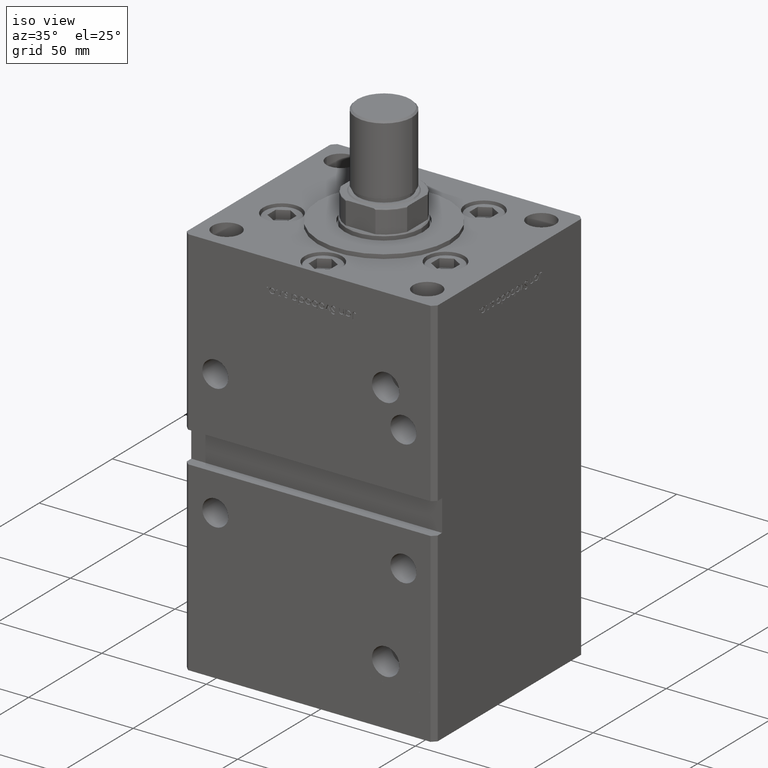
[diagram: clean part render]
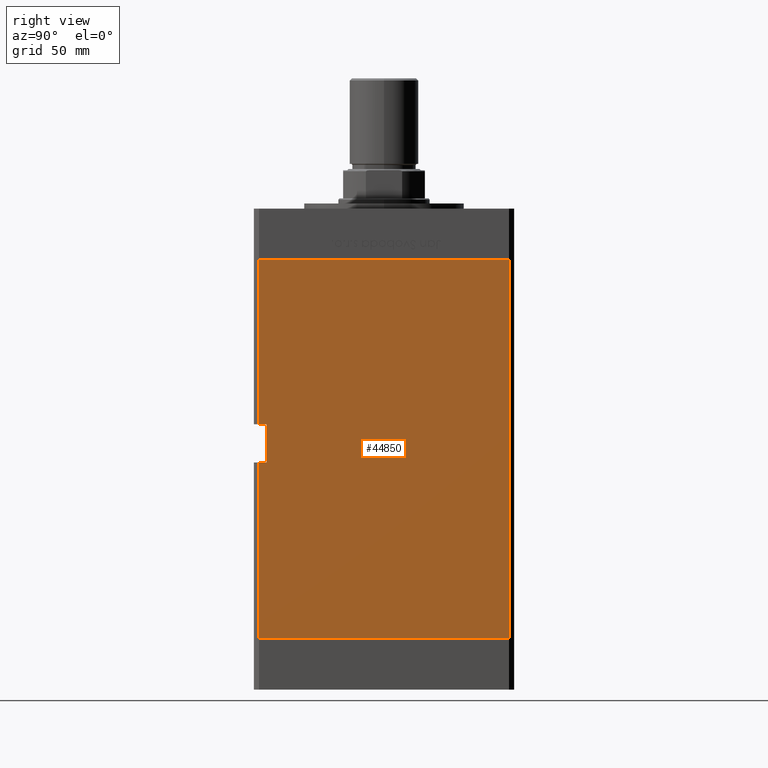
[diagram: tour spotlight — one face highlighted and labeled with its STEP entity id]
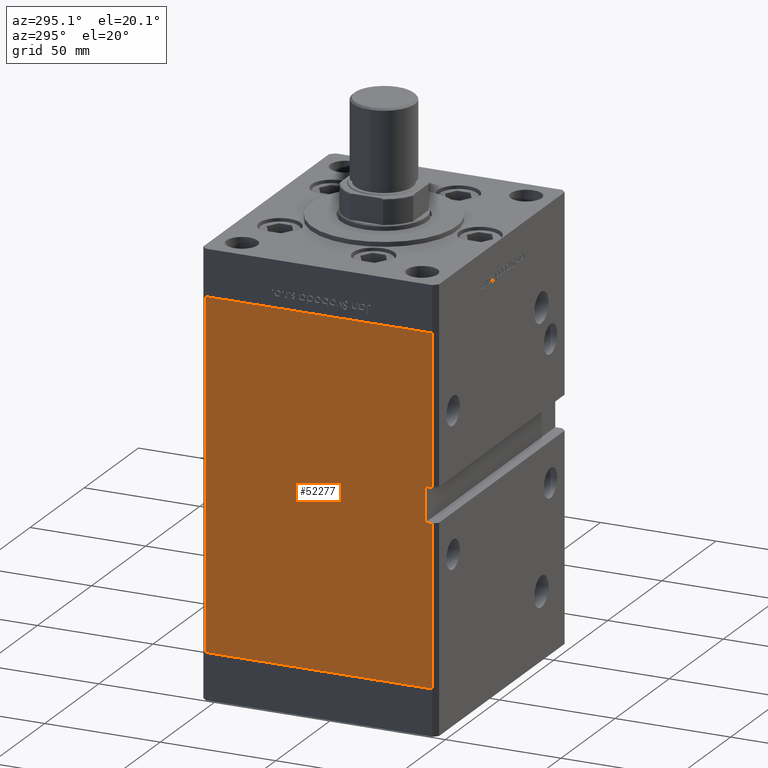
[diagram: tour spotlight — one face highlighted and labeled with its STEP entity id]
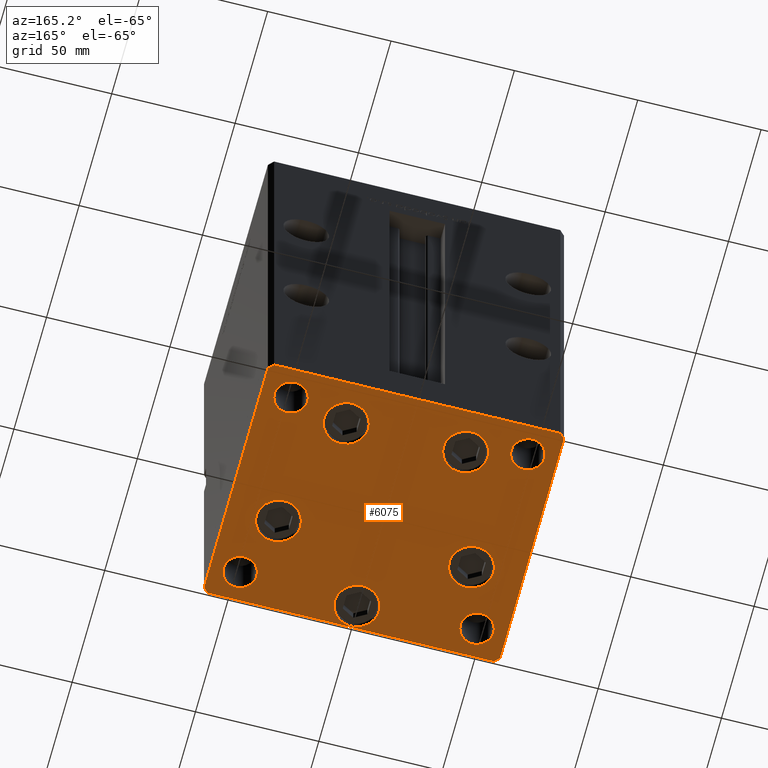
[diagram: tour spotlight — one face highlighted and labeled with its STEP entity id]
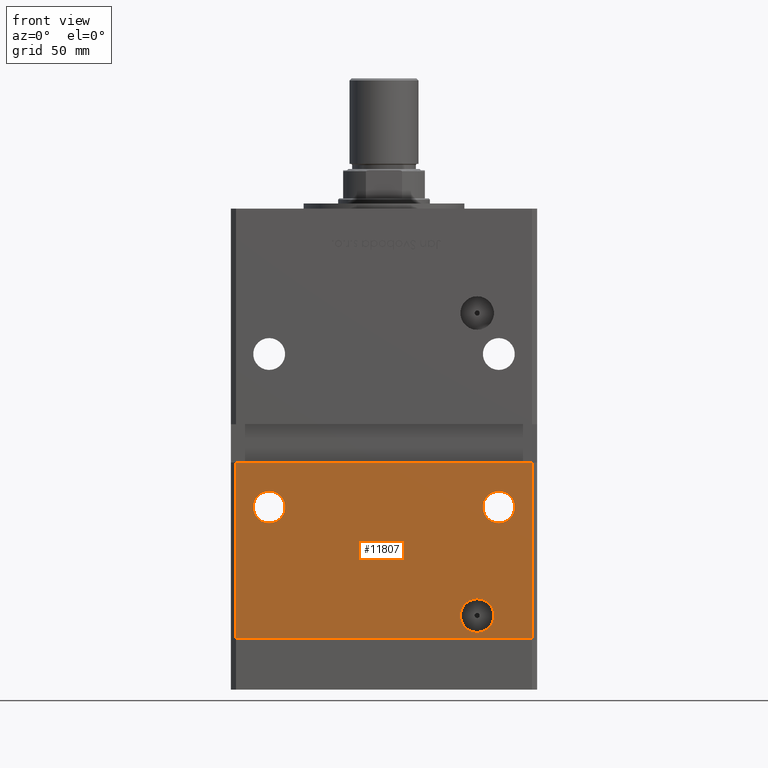
[diagram: tour spotlight — one face highlighted and labeled with its STEP entity id]
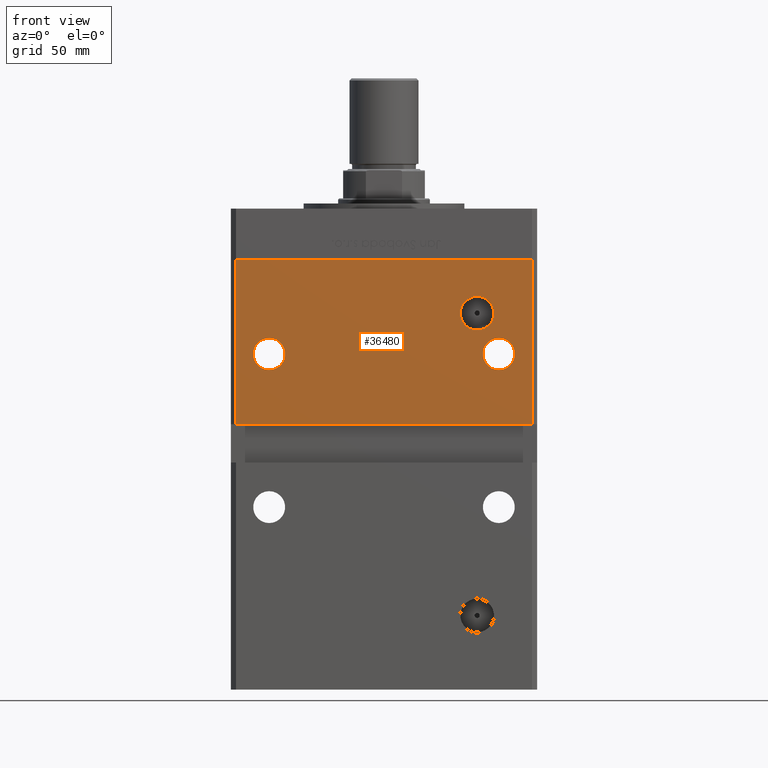
[diagram: tour spotlight — one face highlighted and labeled with its STEP entity id]
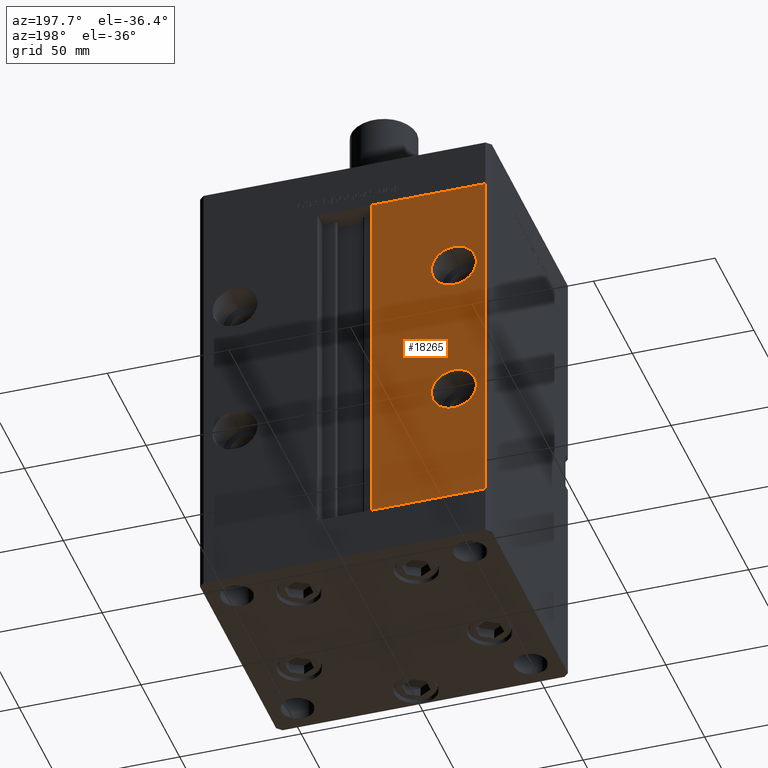
[diagram: tour spotlight — one face highlighted and labeled with its STEP entity id]
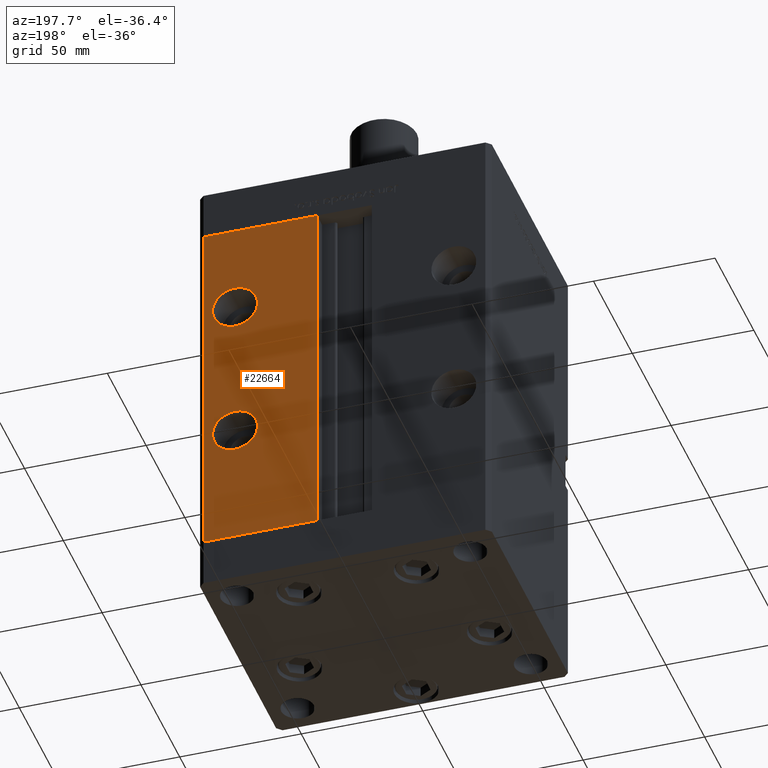
[diagram: tour spotlight — one face highlighted and labeled with its STEP entity id]
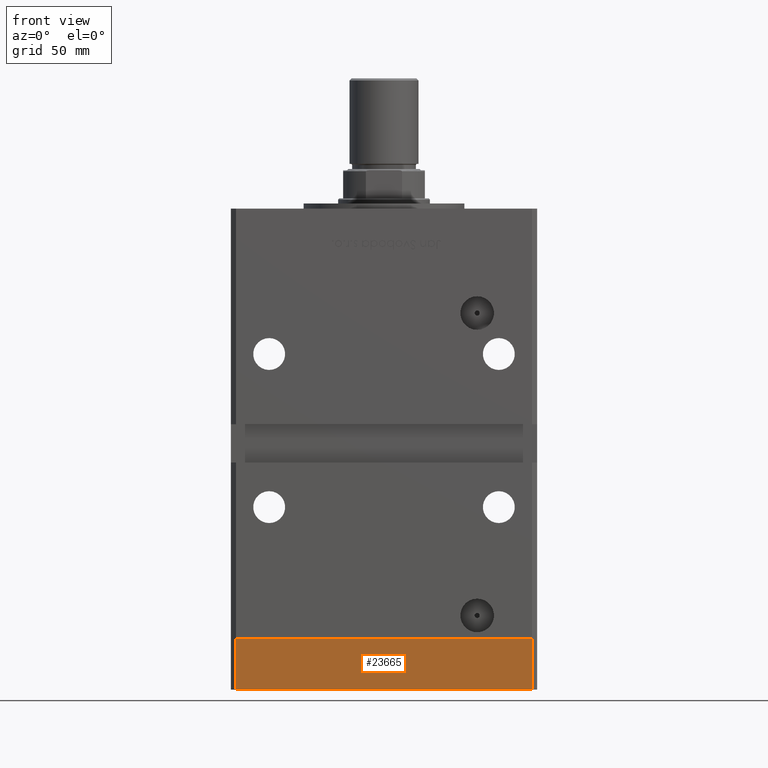
[diagram: tour spotlight — one face highlighted and labeled with its STEP entity id]
A machine part: a face-by-face anatomy tour. The part has 1228 B-rep faces; the first image is the clean iso view, then the 8 largest visible faces are spotlighted one at a time (largest first), each with its STEP entity span.

Face 1 — right view, entity #44850. In plain terms, the highlighted planar face has unit normal (1, -0, 0).
Definition (entity closure, byte-faithful):
#138 = ORIENTED_EDGE ( 'NONE', *, *, #18468, .F. ) ;
#925 = CARTESIAN_POINT ( 'NONE',  ( 60.00000000000001421, 49.00000000000000000, 0.000000000000000000 ) ) ;
#1121 = VERTEX_POINT ( 'NONE', #25501 ) ;
#3420 = CARTESIAN_POINT ( 'NONE',  ( 59.99999999999998579, -45.99999999999999289, 83.99999999999998579 ) ) ;
#3518 = CARTESIAN_POINT ( 'NONE',  ( 59.99999999999998579, -48.99999999999998579, 148.5000000000000000 ) ) ;
#4144 = LINE ( 'NONE', #44471, #24299 ) ;
#4714 = LINE ( 'NONE', #925, #20064 ) ;
#5106 = EDGE_CURVE ( 'NONE', #22193, #21211, #46639, .T. ) ;
#5467 = ORIENTED_EDGE ( 'NONE', *, *, #51526, .T. ) ;
#5613 = LINE ( 'NONE', #51035, #52793 ) ;
#8437 = CARTESIAN_POINT ( 'NONE',  ( 59.99999999999998579, -48.99999999999998579, 0.000000000000000000 ) ) ;
#9584 = EDGE_LOOP ( 'NONE', ( #50818, #5467, #138, #41100, #29774, #27006, #51738, #21041 ) ) ;
#9971 = EDGE_CURVE ( 'NONE', #43489, #32059, #51432, .T. ) ;
#11208 = DIRECTION ( 'NONE',  ( -2.832201593431522219E-16, -1.000000000000000000, 0.000000000000000000 ) ) ;
#12676 = CARTESIAN_POINT ( 'NONE',  ( 59.99999999999998579, -48.99999999999998579, 83.99999999999998579 ) ) ;
#12691 = DIRECTION ( 'NONE',  ( -0.000000000000000000, -0.000000000000000000, -1.000000000000000000 ) ) ;
#13259 = VERTEX_POINT ( 'NONE', #26037 ) ;
#13915 = DIRECTION ( 'NONE',  ( -0.000000000000000000, -0.000000000000000000, -1.000000000000000000 ) ) ;
#14728 = VECTOR ( 'NONE', #19650, 1000.000000000000000 ) ;
#15640 = VECTOR ( 'NONE', #12691, 1000.000000000000000 ) ;
#15865 = EDGE_CURVE ( 'NONE', #32059, #21211, #44261, .T. ) ;
#16533 = EDGE_CURVE ( 'NONE', #43489, #20165, #5613, .T. ) ;
#17138 = PLANE ( 'NONE',  #39603 ) ;
#17186 = EDGE_CURVE ( 'NONE', #13259, #22193, #4144, .T. ) ;
#17931 = CARTESIAN_POINT ( 'NONE',  ( 60.00000000000001421, 49.00000000000000000, 148.5000000000000000 ) ) ;
#18468 = EDGE_CURVE ( 'NONE', #1121, #41442, #4714, .T. ) ;
#19391 = DIRECTION ( 'NONE',  ( -0.000000000000000000, -1.000000000000000000, -0.000000000000000000 ) ) ;
#19650 = DIRECTION ( 'NONE',  ( -0.000000000000000000, -1.000000000000000000, -0.000000000000000000 ) ) ;
#20064 = VECTOR ( 'NONE', #42822, 1000.000000000000000 ) ;
#20165 = VERTEX_POINT ( 'NONE', #38851 ) ;
#21041 = ORIENTED_EDGE ( 'NONE', *, *, #9971, .F. ) ;
#21211 = VERTEX_POINT ( 'NONE', #12676 ) ;
#22193 = VERTEX_POINT ( 'NONE', #3518 ) ;
#22837 = CARTESIAN_POINT ( 'NONE',  ( 59.99999999999998579, -45.99999999999999289, 83.99999999999998579 ) ) ;
#24299 = VECTOR ( 'NONE', #11208, 1000.000000000000000 ) ;
#25501 = CARTESIAN_POINT ( 'NONE',  ( 60.00000000000001421, 49.00000000000000000, 0.000000000000000000 ) ) ;
#26037 = CARTESIAN_POINT ( 'NONE',  ( 60.00000000000001421, 49.00000000000000000, 148.5000000000000000 ) ) ;
#26093 = CARTESIAN_POINT ( 'NONE',  ( 59.99999999999998579, -48.99999999999998579, 148.5000000000000000 ) ) ;
#27006 = ORIENTED_EDGE ( 'NONE', *, *, #5106, .T. ) ;
#28382 = VECTOR ( 'NONE', #50383, 1000.000000000000000 ) ;
#29774 = ORIENTED_EDGE ( 'NONE', *, *, #17186, .T. ) ;
#32059 = VERTEX_POINT ( 'NONE', #22837 ) ;
#33644 = DIRECTION ( 'NONE',  ( 1.000000000000000000, -2.832201593431522219E-16, 0.000000000000000000 ) ) ;
#37429 = FACE_OUTER_BOUND ( 'NONE', #9584, .T. ) ;
#38851 = CARTESIAN_POINT ( 'NONE',  ( 59.99999999999998579, -48.99999999999998579, 68.99999999999998579 ) ) ;
#39603 = AXIS2_PLACEMENT_3D ( 'NONE', #17931, #33644, #50118 ) ;
#39748 = CARTESIAN_POINT ( 'NONE',  ( 59.99999999999998579, -46.00000000000000000, 68.99999999999998579 ) ) ;
#41100 = ORIENTED_EDGE ( 'NONE', *, *, #52575, .F. ) ;
#41442 = VERTEX_POINT ( 'NONE', #8437 ) ;
#41897 = LINE ( 'NONE', #49719, #15640 ) ;
#42003 = LINE ( 'NONE', #49824, #42383 ) ;
#42179 = VECTOR ( 'NONE', #13915, 1000.000000000000000 ) ;
#42383 = VECTOR ( 'NONE', #48585, 1000.000000000000000 ) ;
#42792 = CARTESIAN_POINT ( 'NONE',  ( 59.99999999999998579, -45.99999999999999289, 83.99999999999998579 ) ) ;
#42822 = DIRECTION ( 'NONE',  ( -2.832201593431522219E-16, -1.000000000000000000, 0.000000000000000000 ) ) ;
#43489 = VERTEX_POINT ( 'NONE', #39748 ) ;
#44261 = LINE ( 'NONE', #3420, #14728 ) ;
#44471 = CARTESIAN_POINT ( 'NONE',  ( 60.00000000000001421, 49.00000000000000000, 148.5000000000000000 ) ) ;
#44850 = ADVANCED_FACE ( 'NONE', ( #37429 ), #17138, .T. ) ;
#46639 = LINE ( 'NONE', #26093, #42179 ) ;
#48585 = DIRECTION ( 'NONE',  ( -0.000000000000000000, -0.000000000000000000, -1.000000000000000000 ) ) ;
#49719 = CARTESIAN_POINT ( 'NONE',  ( 60.00000000000001421, 49.00000000000000000, 148.5000000000000000 ) ) ;
#49824 = CARTESIAN_POINT ( 'NONE',  ( 59.99999999999998579, -48.99999999999998579, 148.5000000000000000 ) ) ;
#50118 = DIRECTION ( 'NONE',  ( 2.832201593431522219E-16, 1.000000000000000000, 0.000000000000000000 ) ) ;
#50383 = DIRECTION ( 'NONE',  ( -0.000000000000000000, -0.000000000000000000, 1.000000000000000000 ) ) ;
#50818 = ORIENTED_EDGE ( 'NONE', *, *, #16533, .T. ) ;
#51035 = CARTESIAN_POINT ( 'NONE',  ( 59.99999999999998579, -45.99999999999999289, 68.99999999999998579 ) ) ;
#51432 = LINE ( 'NONE', #42792, #28382 ) ;
#51526 = EDGE_CURVE ( 'NONE', #20165, #41442, #42003, .T. ) ;
#51738 = ORIENTED_EDGE ( 'NONE', *, *, #15865, .F. ) ;
#52575 = EDGE_CURVE ( 'NONE', #13259, #1121, #41897, .T. ) ;
#52793 = VECTOR ( 'NONE', #19391, 1000.000000000000000 ) ;

Face 2 — auxiliary view, entity #52277. In plain terms, the highlighted planar face has unit normal (1, 0, 0).
Definition (entity closure, byte-faithful):
#497 = CARTESIAN_POINT ( 'NONE',  ( -59.99999999999998579, -45.99999999999999289, 83.99999999999998579 ) ) ;
#1674 = VERTEX_POINT ( 'NONE', #52360 ) ;
#1787 = ORIENTED_EDGE ( 'NONE', *, *, #31311, .F. ) ;
#2505 = CARTESIAN_POINT ( 'NONE',  ( -59.99999999999998579, -45.99999999999999289, 68.99999999999998579 ) ) ;
#2998 = DIRECTION ( 'NONE',  ( -0.000000000000000000, -0.000000000000000000, -1.000000000000000000 ) ) ;
#4023 = LINE ( 'NONE', #497, #20138 ) ;
#4132 = ORIENTED_EDGE ( 'NONE', *, *, #18033, .T. ) ;
#4475 = EDGE_CURVE ( 'NONE', #17771, #26240, #5653, .T. ) ;
#4820 = CARTESIAN_POINT ( 'NONE',  ( -59.99999999999998579, -45.99999999999999289, 83.99999999999998579 ) ) ;
#5555 = CARTESIAN_POINT ( 'NONE',  ( -60.00000000000001421, 49.00000000000000000, 148.5000000000000000 ) ) ;
#5653 = LINE ( 'NONE', #6183, #29219 ) ;
#6183 = CARTESIAN_POINT ( 'NONE',  ( -59.99999999999998579, -45.99999999999999289, 68.99999999999998579 ) ) ;
#6973 = DIRECTION ( 'NONE',  ( 2.832201593431522219E-16, -1.000000000000000000, 0.000000000000000000 ) ) ;
#9625 = CARTESIAN_POINT ( 'NONE',  ( -60.00000000000001421, 49.00000000000000000, 148.5000000000000000 ) ) ;
#10794 = CARTESIAN_POINT ( 'NONE',  ( -60.00000000000001421, 49.00000000000000000, 0.000000000000000000 ) ) ;
#11138 = DIRECTION ( 'NONE',  ( -0.000000000000000000, -0.000000000000000000, -1.000000000000000000 ) ) ;
#11571 = EDGE_CURVE ( 'NONE', #35737, #31406, #19680, .T. ) ;
#11677 = CARTESIAN_POINT ( 'NONE',  ( -59.99999999999998579, -48.99999999999998579, 148.5000000000000000 ) ) ;
#12967 = EDGE_CURVE ( 'NONE', #47921, #40976, #40804, .T. ) ;
#14348 = DIRECTION ( 'NONE',  ( -0.000000000000000000, -0.000000000000000000, -1.000000000000000000 ) ) ;
#15126 = DIRECTION ( 'NONE',  ( 2.832201593431522219E-16, -1.000000000000000000, 0.000000000000000000 ) ) ;
#15453 = VECTOR ( 'NONE', #2998, 1000.000000000000000 ) ;
#15512 = VECTOR ( 'NONE', #6973, 1000.000000000000000 ) ;
#17651 = VECTOR ( 'NONE', #25111, 1000.000000000000000 ) ;
#17771 = VERTEX_POINT ( 'NONE', #2505 ) ;
#17802 = LINE ( 'NONE', #4820, #17651 ) ;
#17827 = DIRECTION ( 'NONE',  ( -0.000000000000000000, -1.000000000000000000, -0.000000000000000000 ) ) ;
#18033 = EDGE_CURVE ( 'NONE', #35737, #47921, #47333, .T. ) ;
#19680 = LINE ( 'NONE', #44021, #15512 ) ;
#20138 = VECTOR ( 'NONE', #29189, 1000.000000000000000 ) ;
#21261 = EDGE_CURVE ( 'NONE', #28966, #17771, #4023, .T. ) ;
#22192 = CARTESIAN_POINT ( 'NONE',  ( -60.00000000000001421, 49.00000000000000000, 148.5000000000000000 ) ) ;
#23691 = ORIENTED_EDGE ( 'NONE', *, *, #21261, .F. ) ;
#25111 = DIRECTION ( 'NONE',  ( -0.000000000000000000, -1.000000000000000000, -0.000000000000000000 ) ) ;
#26240 = VERTEX_POINT ( 'NONE', #36391 ) ;
#27009 = CARTESIAN_POINT ( 'NONE',  ( -59.99999999999998579, -48.99999999999998579, 0.000000000000000000 ) ) ;
#28152 = ORIENTED_EDGE ( 'NONE', *, *, #29490, .T. ) ;
#28966 = VERTEX_POINT ( 'NONE', #49633 ) ;
#29189 = DIRECTION ( 'NONE',  ( 0.000000000000000000, 0.000000000000000000, -1.000000000000000000 ) ) ;
#29219 = VECTOR ( 'NONE', #17827, 1000.000000000000000 ) ;
#29490 = EDGE_CURVE ( 'NONE', #28966, #1674, #17802, .T. ) ;
#31065 = VECTOR ( 'NONE', #15126, 1000.000000000000000 ) ;
#31311 = EDGE_CURVE ( 'NONE', #26240, #40976, #39268, .T. ) ;
#31406 = VERTEX_POINT ( 'NONE', #33028 ) ;
#33028 = CARTESIAN_POINT ( 'NONE',  ( -59.99999999999998579, -48.99999999999998579, 148.5000000000000000 ) ) ;
#33706 = DIRECTION ( 'NONE',  ( 1.000000000000000000, 2.832201593431522219E-16, -0.000000000000000000 ) ) ;
#35225 = CARTESIAN_POINT ( 'NONE',  ( -60.00000000000001421, 49.00000000000000000, 0.000000000000000000 ) ) ;
#35737 = VERTEX_POINT ( 'NONE', #5555 ) ;
#36338 = EDGE_LOOP ( 'NONE', ( #1787, #51665, #23691, #28152, #52882, #50019, #4132, #46543 ) ) ;
#36391 = CARTESIAN_POINT ( 'NONE',  ( -59.99999999999998579, -48.99999999999998579, 68.99999999999998579 ) ) ;
#36693 = VECTOR ( 'NONE', #11138, 1000.000000000000000 ) ;
#37213 = AXIS2_PLACEMENT_3D ( 'NONE', #9625, #33706, #42080 ) ;
#39268 = LINE ( 'NONE', #11677, #36693 ) ;
#40588 = LINE ( 'NONE', #43833, #15453 ) ;
#40804 = LINE ( 'NONE', #10794, #31065 ) ;
#40976 = VERTEX_POINT ( 'NONE', #27009 ) ;
#41684 = EDGE_CURVE ( 'NONE', #31406, #1674, #40588, .T. ) ;
#42080 = DIRECTION ( 'NONE',  ( -2.832201593431522219E-16, 1.000000000000000000, 0.000000000000000000 ) ) ;
#43833 = CARTESIAN_POINT ( 'NONE',  ( -59.99999999999998579, -48.99999999999998579, 148.5000000000000000 ) ) ;
#44021 = CARTESIAN_POINT ( 'NONE',  ( -60.00000000000001421, 49.00000000000000000, 148.5000000000000000 ) ) ;
#46543 = ORIENTED_EDGE ( 'NONE', *, *, #12967, .T. ) ;
#46764 = VECTOR ( 'NONE', #14348, 1000.000000000000000 ) ;
#47333 = LINE ( 'NONE', #22192, #46764 ) ;
#47921 = VERTEX_POINT ( 'NONE', #35225 ) ;
#49633 = CARTESIAN_POINT ( 'NONE',  ( -59.99999999999998579, -45.99999999999999289, 83.99999999999998579 ) ) ;
#50019 = ORIENTED_EDGE ( 'NONE', *, *, #11571, .F. ) ;
#50183 = FACE_OUTER_BOUND ( 'NONE', #36338, .T. ) ;
#50715 = PLANE ( 'NONE',  #37213 ) ;
#51665 = ORIENTED_EDGE ( 'NONE', *, *, #4475, .F. ) ;
#52277 = ADVANCED_FACE ( 'NONE', ( #50183 ), #50715, .F. ) ;
#52360 = CARTESIAN_POINT ( 'NONE',  ( -59.99999999999998579, -48.99999999999998579, 83.99999999999998579 ) ) ;
#52882 = ORIENTED_EDGE ( 'NONE', *, *, #41684, .F. ) ;

Face 3 — auxiliary view, entity #6075. In plain terms, the highlighted planar face has unit normal (0, 0, -1).
Definition (entity closure, byte-faithful):
#70 = CARTESIAN_POINT ( 'NONE',  ( -48.00000000000000000, 39.00000000000000000, 0.000000000000000000 ) ) ;
#607 = FACE_BOUND ( 'NONE', #43370, .T. ) ;
#830 = ORIENTED_EDGE ( 'NONE', *, *, #41654, .T. ) ;
#1344 = CARTESIAN_POINT ( 'NONE',  ( 39.12657522565562829, -13.83333333333332860, 0.000000000000000000 ) ) ;
#1417 = DIRECTION ( 'NONE',  ( 0.000000000000000000, -0.000000000000000000, -1.000000000000000000 ) ) ;
#1784 = ORIENTED_EDGE ( 'NONE', *, *, #14873, .T. ) ;
#1841 = DIRECTION ( 'NONE',  ( 1.000000000000000000, 0.000000000000000000, 0.000000000000000000 ) ) ;
#2013 = CARTESIAN_POINT ( 'NONE',  ( 48.00000000000000000, 38.99999999999999289, 0.000000000000000000 ) ) ;
#2393 = EDGE_CURVE ( 'NONE', #43696, #6861, #30871, .T. ) ;
#2436 = CIRCLE ( 'NONE', #37846, 6.749999999999999112 ) ;
#2481 = CIRCLE ( 'NONE', #13727, 9.000000000000001776 ) ;
#2711 = EDGE_CURVE ( 'NONE', #21764, #13724, #25664, .T. ) ;
#2729 = AXIS2_PLACEMENT_3D ( 'NONE', #6509, #35729, #10030 ) ;
#2819 = DIRECTION ( 'NONE',  ( 1.000000000000000000, 1.196361017915039486E-16, 0.000000000000000000 ) ) ;
#2828 = CARTESIAN_POINT ( 'NONE',  ( 58.00000000000000000, -51.00000000000000711, 0.000000000000000000 ) ) ;
#3163 = CARTESIAN_POINT ( 'NONE',  ( 5.082284216461515748E-15, -41.50000000000000000, 0.000000000000000000 ) ) ;
#3343 = ORIENTED_EDGE ( 'NONE', *, *, #2711, .T. ) ;
#3412 = ORIENTED_EDGE ( 'NONE', *, *, #5276, .F. ) ;
#3439 = CARTESIAN_POINT ( 'NONE',  ( 54.75000000000000000, -38.99999999999999289, 0.000000000000000000 ) ) ;
#3498 = AXIS2_PLACEMENT_3D ( 'NONE', #3163, #32383, #15338 ) ;
#3608 = VERTEX_POINT ( 'NONE', #28149 ) ;
#3664 = VERTEX_POINT ( 'NONE', #50260 ) ;
#3857 = CARTESIAN_POINT ( 'NONE',  ( 48.00000000000000000, -38.99999999999999289, 0.000000000000000000 ) ) ;
#4090 = VERTEX_POINT ( 'NONE', #28035 ) ;
#4321 = DIRECTION ( 'NONE',  ( -1.000000000000000000, -2.392722035830079958E-16, 0.000000000000000000 ) ) ;
#4411 = CARTESIAN_POINT ( 'NONE',  ( -41.25000000000000000, 39.00000000000000000, 0.000000000000000000 ) ) ;
#4699 = DIRECTION ( 'NONE',  ( -0.7071067811865451302, -0.7071067811865500152, 0.000000000000000000 ) ) ;
#4729 = VERTEX_POINT ( 'NONE', #41848 ) ;
#4777 = LINE ( 'NONE', #48682, #44186 ) ;
#4935 = FACE_BOUND ( 'NONE', #12682, .T. ) ;
#5189 = ORIENTED_EDGE ( 'NONE', *, *, #14022, .T. ) ;
#5276 = EDGE_CURVE ( 'NONE', #51896, #37926, #34433, .T. ) ;
#5340 = CARTESIAN_POINT ( 'NONE',  ( 24.19288941894911460, 33.71875000000000711, 0.000000000000000000 ) ) ;
#5405 = EDGE_LOOP ( 'NONE', ( #3343, #18942 ) ) ;
#5729 = FACE_BOUND ( 'NONE', #50613, .T. ) ;
#5918 = AXIS2_PLACEMENT_3D ( 'NONE', #30363, #21167, #30096 ) ;
#6075 = ADVANCED_FACE ( 'NONE', ( #9003, #607, #50627, #29308, #5729, #29575, #41734, #4935, #9270, #13857 ), #46315, .T. ) ;
#6107 = ORIENTED_EDGE ( 'NONE', *, *, #41359, .T. ) ;
#6509 = CARTESIAN_POINT ( 'NONE',  ( -24.19288941894912170, 33.71875000000000000, 0.000000000000000000 ) ) ;
#6578 = VERTEX_POINT ( 'NONE', #51354 ) ;
#6861 = VERTEX_POINT ( 'NONE', #22627 ) ;
#7206 = CARTESIAN_POINT ( 'NONE',  ( 58.00000000000000000, -51.00000000000000711, 0.000000000000000000 ) ) ;
#7569 = VECTOR ( 'NONE', #15983, 1000.000000000000000 ) ;
#8191 = DIRECTION ( 'NONE',  ( 1.000000000000000000, 0.000000000000000000, 0.000000000000000000 ) ) ;
#8340 = DIRECTION ( 'NONE',  ( 1.000000000000000000, 0.000000000000000000, 0.000000000000000000 ) ) ;
#8894 = VECTOR ( 'NONE', #39352, 1000.000000000000114 ) ;
#9003 = FACE_BOUND ( 'NONE', #29487, .T. ) ;
#9170 = VERTEX_POINT ( 'NONE', #27125 ) ;
#9270 = FACE_OUTER_BOUND ( 'NONE', #10716, .T. ) ;
#9486 = ORIENTED_EDGE ( 'NONE', *, *, #32943, .T. ) ;
#9687 = EDGE_CURVE ( 'NONE', #20662, #3664, #2436, .T. ) ;
#9965 = EDGE_CURVE ( 'NONE', #43279, #3608, #49953, .T. ) ;
#10030 = DIRECTION ( 'NONE',  ( 1.000000000000000000, 0.000000000000000000, 0.000000000000000000 ) ) ;
#10592 = DIRECTION ( 'NONE',  ( 1.000000000000000000, 0.000000000000000000, 0.000000000000000000 ) ) ;
#10716 = EDGE_LOOP ( 'NONE', ( #16290, #39367, #1784, #39096, #830, #20557, #9486, #21423 ) ) ;
#11126 = DIRECTION ( 'NONE',  ( 0.000000000000000000, -0.000000000000000000, -1.000000000000000000 ) ) ;
#11331 = EDGE_CURVE ( 'NONE', #22024, #4729, #2481, .T. ) ;
#11595 = CARTESIAN_POINT ( 'NONE',  ( -39.12657522565562829, -13.83333333333333925, 0.000000000000000000 ) ) ;
#11887 = CIRCLE ( 'NONE', #51588, 9.000000000000000000 ) ;
#11909 = VERTEX_POINT ( 'NONE', #45708 ) ;
#12456 = CARTESIAN_POINT ( 'NONE',  ( 48.00000000000000000, 38.99999999999999289, 0.000000000000000000 ) ) ;
#12682 = EDGE_LOOP ( 'NONE', ( #23816, #3412 ) ) ;
#13397 = CARTESIAN_POINT ( 'NONE',  ( -60.00000000000000000, 48.99999999999995737, 0.000000000000000000 ) ) ;
#13549 = CIRCLE ( 'NONE', #31702, 9.000000000000001776 ) ;
#13724 = VERTEX_POINT ( 'NONE', #16463 ) ;
#13727 = AXIS2_PLACEMENT_3D ( 'NONE', #50527, #42156, #17275 ) ;
#13857 = FACE_BOUND ( 'NONE', #5405, .T. ) ;
#14022 = EDGE_CURVE ( 'NONE', #6861, #43696, #31107, .T. ) ;
#14224 = ORIENTED_EDGE ( 'NONE', *, *, #2393, .T. ) ;
#14246 = DIRECTION ( 'NONE',  ( 0.000000000000000000, -0.000000000000000000, -1.000000000000000000 ) ) ;
#14394 = CIRCLE ( 'NONE', #52376, 9.000000000000001776 ) ;
#14473 = CARTESIAN_POINT ( 'NONE',  ( -60.00000000000000000, -49.00000000000000000, 0.000000000000000000 ) ) ;
#14873 = EDGE_CURVE ( 'NONE', #35862, #11909, #41179, .T. ) ;
#14885 = VECTOR ( 'NONE', #4321, 1000.000000000000000 ) ;
#14926 = DIRECTION ( 'NONE',  ( 1.000000000000000000, 0.000000000000000000, 0.000000000000000000 ) ) ;
#15177 = EDGE_CURVE ( 'NONE', #25007, #21499, #25151, .T. ) ;
#15180 = VECTOR ( 'NONE', #4699, 1000.000000000000114 ) ;
#15321 = AXIS2_PLACEMENT_3D ( 'NONE', #38152, #41678, #21111 ) ;
#15338 = DIRECTION ( 'NONE',  ( 1.000000000000000000, 0.000000000000000000, 0.000000000000000000 ) ) ;
#15720 = CARTESIAN_POINT ( 'NONE',  ( 59.99999999999994316, 49.00000000000000000, 0.000000000000000000 ) ) ;
#15983 = DIRECTION ( 'NONE',  ( -0.7071067811865487940, 0.7071067811865463515, 0.000000000000000000 ) ) ;
#16041 = CIRCLE ( 'NONE', #46250, 9.000000000000001776 ) ;
#16101 = EDGE_CURVE ( 'NONE', #28939, #35862, #27722, .T. ) ;
#16290 = ORIENTED_EDGE ( 'NONE', *, *, #21821, .T. ) ;
#16413 = CIRCLE ( 'NONE', #42354, 6.749999999999999112 ) ;
#16463 = CARTESIAN_POINT ( 'NONE',  ( -54.75000000000000000, -39.00000000000000000, 0.000000000000000000 ) ) ;
#16556 = CIRCLE ( 'NONE', #2729, 9.000000000000000000 ) ;
#17055 = CIRCLE ( 'NONE', #47272, 6.749999999999999112 ) ;
#17275 = DIRECTION ( 'NONE',  ( 1.000000000000000000, 0.000000000000000000, 0.000000000000000000 ) ) ;
#17588 = EDGE_LOOP ( 'NONE', ( #14224, #5189 ) ) ;
#18092 = EDGE_CURVE ( 'NONE', #11909, #4090, #4777, .T. ) ;
#18118 = CARTESIAN_POINT ( 'NONE',  ( -54.75000000000000000, 39.00000000000000000, 0.000000000000000000 ) ) ;
#18942 = ORIENTED_EDGE ( 'NONE', *, *, #51487, .T. ) ;
#19512 = CARTESIAN_POINT ( 'NONE',  ( -48.00000000000000000, 39.00000000000000000, 0.000000000000000000 ) ) ;
#19569 = CARTESIAN_POINT ( 'NONE',  ( 48.12657522565562829, -13.83333333333332682, 0.000000000000000000 ) ) ;
#20045 = ORIENTED_EDGE ( 'NONE', *, *, #49338, .T. ) ;
#20046 = DIRECTION ( 'NONE',  ( 1.000000000000000000, 0.000000000000000000, 0.000000000000000000 ) ) ;
#20557 = ORIENTED_EDGE ( 'NONE', *, *, #24447, .T. ) ;
#20662 = VERTEX_POINT ( 'NONE', #35901 ) ;
#20687 = VERTEX_POINT ( 'NONE', #3439 ) ;
#20823 = CARTESIAN_POINT ( 'NONE',  ( -60.00000000000000000, 48.99999999999995737, 0.000000000000000000 ) ) ;
#20928 = CARTESIAN_POINT ( 'NONE',  ( -57.99999999999999289, 50.99999999999997868, 0.000000000000000000 ) ) ;
#21111 = DIRECTION ( 'NONE',  ( 1.000000000000000000, 0.000000000000000000, 0.000000000000000000 ) ) ;
#21167 = DIRECTION ( 'NONE',  ( -0.000000000000000000, 0.000000000000000000, 1.000000000000000000 ) ) ;
#21423 = ORIENTED_EDGE ( 'NONE', *, *, #15177, .T. ) ;
#21499 = VERTEX_POINT ( 'NONE', #36175 ) ;
#21764 = VERTEX_POINT ( 'NONE', #51779 ) ;
#21821 = EDGE_CURVE ( 'NONE', #21499, #28939, #27745, .T. ) ;
#21935 = AXIS2_PLACEMENT_3D ( 'NONE', #34238, #41812, #38286 ) ;
#21985 = CARTESIAN_POINT ( 'NONE',  ( -39.12657522565562829, -13.83333333333333925, 0.000000000000000000 ) ) ;
#22024 = VERTEX_POINT ( 'NONE', #34191 ) ;
#22096 = DIRECTION ( 'NONE',  ( 1.000000000000000000, 0.000000000000000000, 0.000000000000000000 ) ) ;
#22509 = DIRECTION ( 'NONE',  ( 1.000000000000000000, 0.000000000000000000, 0.000000000000000000 ) ) ;
#22627 = CARTESIAN_POINT ( 'NONE',  ( 9.000000000000005329, -41.50000000000000000, 0.000000000000000000 ) ) ;
#23369 = VECTOR ( 'NONE', #2819, 1000.000000000000000 ) ;
#23816 = ORIENTED_EDGE ( 'NONE', *, *, #42105, .F. ) ;
#24296 = DIRECTION ( 'NONE',  ( 1.000000000000000000, 0.000000000000000000, 0.000000000000000000 ) ) ;
#24447 = EDGE_CURVE ( 'NONE', #9170, #40926, #28439, .T. ) ;
#24488 = CIRCLE ( 'NONE', #21935, 9.000000000000001776 ) ;
#24915 = AXIS2_PLACEMENT_3D ( 'NONE', #70, #33077, #8191 ) ;
#25007 = VERTEX_POINT ( 'NONE', #13397 ) ;
#25151 = LINE ( 'NONE', #20823, #37199 ) ;
#25506 = DIRECTION ( 'NONE',  ( 0.000000000000000000, -0.000000000000000000, -1.000000000000000000 ) ) ;
#25664 = CIRCLE ( 'NONE', #38655, 6.749999999999999112 ) ;
#26116 = ORIENTED_EDGE ( 'NONE', *, *, #53076, .T. ) ;
#27001 = DIRECTION ( 'NONE',  ( 0.000000000000000000, -0.000000000000000000, -1.000000000000000000 ) ) ;
#27125 = CARTESIAN_POINT ( 'NONE',  ( 57.99999999999993605, 51.00000000000000711, 0.000000000000000000 ) ) ;
#27495 = DIRECTION ( 'NONE',  ( 0.7071067811865474617, 0.7071067811865474617, 0.000000000000000000 ) ) ;
#27686 = VECTOR ( 'NONE', #27495, 1000.000000000000114 ) ;
#27722 = LINE ( 'NONE', #39874, #23369 ) ;
#27745 = LINE ( 'NONE', #14473, #8894 ) ;
#28035 = CARTESIAN_POINT ( 'NONE',  ( 59.99999999999994316, 49.00000000000000000, 0.000000000000000000 ) ) ;
#28149 = CARTESIAN_POINT ( 'NONE',  ( -30.12657522565562829, -13.83333333333333748, 0.000000000000000000 ) ) ;
#28439 = LINE ( 'NONE', #45431, #14885 ) ;
#28932 = EDGE_CURVE ( 'NONE', #38845, #6578, #24488, .T. ) ;
#28939 = VERTEX_POINT ( 'NONE', #50709 ) ;
#29308 = FACE_BOUND ( 'NONE', #17588, .T. ) ;
#29487 = EDGE_LOOP ( 'NONE', ( #26116, #44717 ) ) ;
#29575 = FACE_BOUND ( 'NONE', #32554, .T. ) ;
#29725 = DIRECTION ( 'NONE',  ( 0.000000000000000000, -0.000000000000000000, -1.000000000000000000 ) ) ;
#30096 = DIRECTION ( 'NONE',  ( 1.000000000000000000, 0.000000000000000000, 0.000000000000000000 ) ) ;
#30363 = CARTESIAN_POINT ( 'NONE',  ( 0.000000000000000000, 0.000000000000000000, 0.000000000000000000 ) ) ;
#30871 = CIRCLE ( 'NONE', #15321, 9.000000000000000000 ) ;
#31107 = CIRCLE ( 'NONE', #3498, 9.000000000000000000 ) ;
#31702 = AXIS2_PLACEMENT_3D ( 'NONE', #5340, #14246, #22096 ) ;
#32161 = DIRECTION ( 'NONE',  ( 0.000000000000000000, -0.000000000000000000, -1.000000000000000000 ) ) ;
#32349 = ORIENTED_EDGE ( 'NONE', *, *, #35070, .T. ) ;
#32383 = DIRECTION ( 'NONE',  ( 0.000000000000000000, -0.000000000000000000, -1.000000000000000000 ) ) ;
#32467 = ORIENTED_EDGE ( 'NONE', *, *, #9965, .T. ) ;
#32554 = EDGE_LOOP ( 'NONE', ( #46156, #47423 ) ) ;
#32943 = EDGE_CURVE ( 'NONE', #40926, #25007, #37967, .T. ) ;
#33077 = DIRECTION ( 'NONE',  ( -0.000000000000000000, 0.000000000000000000, 1.000000000000000000 ) ) ;
#33337 = ORIENTED_EDGE ( 'NONE', *, *, #36741, .T. ) ;
#33351 = DIRECTION ( 'NONE',  ( 1.000000000000000000, 0.000000000000000000, 0.000000000000000000 ) ) ;
#33615 = EDGE_CURVE ( 'NONE', #3608, #43279, #16041, .T. ) ;
#34191 = CARTESIAN_POINT ( 'NONE',  ( 15.19288941894911105, 33.71875000000000711, 0.000000000000000000 ) ) ;
#34229 = EDGE_CURVE ( 'NONE', #3664, #20662, #53194, .T. ) ;
#34238 = CARTESIAN_POINT ( 'NONE',  ( 39.12657522565562829, -13.83333333333332860, 0.000000000000000000 ) ) ;
#34433 = CIRCLE ( 'NONE', #24915, 6.749999999999999112 ) ;
#35070 = EDGE_CURVE ( 'NONE', #6578, #38845, #14394, .T. ) ;
#35476 = AXIS2_PLACEMENT_3D ( 'NONE', #37144, #25506, #33351 ) ;
#35729 = DIRECTION ( 'NONE',  ( 0.000000000000000000, -0.000000000000000000, -1.000000000000000000 ) ) ;
#35862 = VERTEX_POINT ( 'NONE', #2828 ) ;
#35901 = CARTESIAN_POINT ( 'NONE',  ( 41.25000000000000000, 38.99999999999999289, 0.000000000000000000 ) ) ;
#36175 = CARTESIAN_POINT ( 'NONE',  ( -60.00000000000000000, -49.00000000000000000, 0.000000000000000000 ) ) ;
#36340 = DIRECTION ( 'NONE',  ( 0.000000000000000000, -0.000000000000000000, -1.000000000000000000 ) ) ;
#36545 = DIRECTION ( 'NONE',  ( 0.000000000000000000, -1.000000000000000000, 0.000000000000000000 ) ) ;
#36741 = EDGE_CURVE ( 'NONE', #4729, #22024, #13549, .T. ) ;
#37144 = CARTESIAN_POINT ( 'NONE',  ( -48.00000000000000000, -39.00000000000000000, 0.000000000000000000 ) ) ;
#37199 = VECTOR ( 'NONE', #36545, 1000.000000000000000 ) ;
#37553 = CARTESIAN_POINT ( 'NONE',  ( -48.00000000000000000, -39.00000000000000000, 0.000000000000000000 ) ) ;
#37846 = AXIS2_PLACEMENT_3D ( 'NONE', #2013, #38284, #50707 ) ;
#37926 = VERTEX_POINT ( 'NONE', #4411 ) ;
#37967 = LINE ( 'NONE', #20928, #15180 ) ;
#38152 = CARTESIAN_POINT ( 'NONE',  ( 5.082284216461515748E-15, -41.50000000000000000, 0.000000000000000000 ) ) ;
#38284 = DIRECTION ( 'NONE',  ( -0.000000000000000000, 0.000000000000000000, 1.000000000000000000 ) ) ;
#38286 = DIRECTION ( 'NONE',  ( 1.000000000000000000, 0.000000000000000000, 0.000000000000000000 ) ) ;
#38638 = EDGE_LOOP ( 'NONE', ( #32349, #44641 ) ) ;
#38655 = AXIS2_PLACEMENT_3D ( 'NONE', #37553, #29725, #8340 ) ;
#38688 = VERTEX_POINT ( 'NONE', #49383 ) ;
#38845 = VERTEX_POINT ( 'NONE', #19569 ) ;
#38904 = CARTESIAN_POINT ( 'NONE',  ( -57.99999999999999289, 50.99999999999997868, 0.000000000000000000 ) ) ;
#39096 = ORIENTED_EDGE ( 'NONE', *, *, #18092, .T. ) ;
#39352 = DIRECTION ( 'NONE',  ( 0.7071067811865474617, -0.7071067811865474617, 0.000000000000000000 ) ) ;
#39367 = ORIENTED_EDGE ( 'NONE', *, *, #16101, .T. ) ;
#39743 = EDGE_LOOP ( 'NONE', ( #20045, #6107 ) ) ;
#39788 = LINE ( 'NONE', #15720, #7569 ) ;
#39874 = CARTESIAN_POINT ( 'NONE',  ( -57.99999999999997868, -51.00000000000001421, 0.000000000000000000 ) ) ;
#40867 = DIRECTION ( 'NONE',  ( -0.000000000000000000, 0.000000000000000000, 1.000000000000000000 ) ) ;
#40880 = CARTESIAN_POINT ( 'NONE',  ( -48.12657522565562829, -13.83333333333333925, 0.000000000000000000 ) ) ;
#40926 = VERTEX_POINT ( 'NONE', #38904 ) ;
#41179 = LINE ( 'NONE', #7206, #27686 ) ;
#41359 = EDGE_CURVE ( 'NONE', #45768, #20687, #17055, .T. ) ;
#41654 = EDGE_CURVE ( 'NONE', #4090, #9170, #39788, .T. ) ;
#41678 = DIRECTION ( 'NONE',  ( 0.000000000000000000, -0.000000000000000000, -1.000000000000000000 ) ) ;
#41734 = FACE_BOUND ( 'NONE', #39743, .T. ) ;
#41812 = DIRECTION ( 'NONE',  ( 0.000000000000000000, -0.000000000000000000, -1.000000000000000000 ) ) ;
#41848 = CARTESIAN_POINT ( 'NONE',  ( 33.19288941894911460, 33.71875000000000711, 0.000000000000000000 ) ) ;
#42105 = EDGE_CURVE ( 'NONE', #37926, #51896, #51710, .T. ) ;
#42156 = DIRECTION ( 'NONE',  ( 0.000000000000000000, -0.000000000000000000, -1.000000000000000000 ) ) ;
#42212 = EDGE_CURVE ( 'NONE', #38688, #46900, #11887, .T. ) ;
#42232 = AXIS2_PLACEMENT_3D ( 'NONE', #19512, #52767, #10592 ) ;
#42354 = AXIS2_PLACEMENT_3D ( 'NONE', #43220, #27001, #1841 ) ;
#43220 = CARTESIAN_POINT ( 'NONE',  ( 48.00000000000000000, -38.99999999999999289, 0.000000000000000000 ) ) ;
#43279 = VERTEX_POINT ( 'NONE', #40880 ) ;
#43370 = EDGE_LOOP ( 'NONE', ( #51141, #33337 ) ) ;
#43696 = VERTEX_POINT ( 'NONE', #47244 ) ;
#43697 = AXIS2_PLACEMENT_3D ( 'NONE', #12456, #40867, #20046 ) ;
#44186 = VECTOR ( 'NONE', #52739, 1000.000000000000000 ) ;
#44641 = ORIENTED_EDGE ( 'NONE', *, *, #28932, .T. ) ;
#44717 = ORIENTED_EDGE ( 'NONE', *, *, #42212, .T. ) ;
#44960 = CARTESIAN_POINT ( 'NONE',  ( 41.25000000000000000, -38.99999999999999289, 0.000000000000000000 ) ) ;
#44976 = CIRCLE ( 'NONE', #35476, 6.749999999999999112 ) ;
#45431 = CARTESIAN_POINT ( 'NONE',  ( 57.99999999999993605, 51.00000000000000711, 0.000000000000000000 ) ) ;
#45708 = CARTESIAN_POINT ( 'NONE',  ( 60.00000000000001421, -48.99999999999999289, 0.000000000000000000 ) ) ;
#45768 = VERTEX_POINT ( 'NONE', #44960 ) ;
#46156 = ORIENTED_EDGE ( 'NONE', *, *, #34229, .F. ) ;
#46250 = AXIS2_PLACEMENT_3D ( 'NONE', #11595, #32161, #24296 ) ;
#46315 = PLANE ( 'NONE',  #5918 ) ;
#46900 = VERTEX_POINT ( 'NONE', #49205 ) ;
#47048 = DIRECTION ( 'NONE',  ( 1.000000000000000000, 0.000000000000000000, 0.000000000000000000 ) ) ;
#47244 = CARTESIAN_POINT ( 'NONE',  ( -8.999999999999994671, -41.50000000000000000, 0.000000000000000000 ) ) ;
#47272 = AXIS2_PLACEMENT_3D ( 'NONE', #3857, #36340, #52816 ) ;
#47423 = ORIENTED_EDGE ( 'NONE', *, *, #9687, .F. ) ;
#48682 = CARTESIAN_POINT ( 'NONE',  ( 60.00000000000001421, -48.99999999999999289, 0.000000000000000000 ) ) ;
#49205 = CARTESIAN_POINT ( 'NONE',  ( -33.19288941894912170, 33.71875000000000000, 0.000000000000000000 ) ) ;
#49338 = EDGE_CURVE ( 'NONE', #20687, #45768, #16413, .T. ) ;
#49383 = CARTESIAN_POINT ( 'NONE',  ( -15.19288941894912170, 33.71875000000000000, 0.000000000000000000 ) ) ;
#49953 = CIRCLE ( 'NONE', #51652, 9.000000000000001776 ) ;
#50260 = CARTESIAN_POINT ( 'NONE',  ( 54.75000000000000000, 38.99999999999999289, 0.000000000000000000 ) ) ;
#50527 = CARTESIAN_POINT ( 'NONE',  ( 24.19288941894911460, 33.71875000000000711, 0.000000000000000000 ) ) ;
#50613 = EDGE_LOOP ( 'NONE', ( #32467, #51016 ) ) ;
#50627 = FACE_BOUND ( 'NONE', #38638, .T. ) ;
#50707 = DIRECTION ( 'NONE',  ( 1.000000000000000000, 0.000000000000000000, 0.000000000000000000 ) ) ;
#50709 = CARTESIAN_POINT ( 'NONE',  ( -57.99999999999997868, -51.00000000000001421, 0.000000000000000000 ) ) ;
#50834 = DIRECTION ( 'NONE',  ( 0.000000000000000000, -0.000000000000000000, -1.000000000000000000 ) ) ;
#51016 = ORIENTED_EDGE ( 'NONE', *, *, #33615, .T. ) ;
#51141 = ORIENTED_EDGE ( 'NONE', *, *, #11331, .T. ) ;
#51354 = CARTESIAN_POINT ( 'NONE',  ( 30.12657522565562829, -13.83333333333332860, 0.000000000000000000 ) ) ;
#51487 = EDGE_CURVE ( 'NONE', #13724, #21764, #44976, .T. ) ;
#51588 = AXIS2_PLACEMENT_3D ( 'NONE', #52486, #11126, #14926 ) ;
#51652 = AXIS2_PLACEMENT_3D ( 'NONE', #21985, #1417, #22509 ) ;
#51710 = CIRCLE ( 'NONE', #42232, 6.749999999999999112 ) ;
#51779 = CARTESIAN_POINT ( 'NONE',  ( -41.25000000000000000, -39.00000000000000000, 0.000000000000000000 ) ) ;
#51896 = VERTEX_POINT ( 'NONE', #18118 ) ;
#52376 = AXIS2_PLACEMENT_3D ( 'NONE', #1344, #50834, #47048 ) ;
#52486 = CARTESIAN_POINT ( 'NONE',  ( -24.19288941894912170, 33.71875000000000000, 0.000000000000000000 ) ) ;
#52739 = DIRECTION ( 'NONE',  ( -7.080503983578803823E-16, 1.000000000000000000, 0.000000000000000000 ) ) ;
#52767 = DIRECTION ( 'NONE',  ( -0.000000000000000000, 0.000000000000000000, 1.000000000000000000 ) ) ;
#52816 = DIRECTION ( 'NONE',  ( 1.000000000000000000, 0.000000000000000000, 0.000000000000000000 ) ) ;
#53076 = EDGE_CURVE ( 'NONE', #46900, #38688, #16556, .T. ) ;
#53194 = CIRCLE ( 'NONE', #43697, 6.749999999999999112 ) ;

Face 4 — front view, entity #11807. In plain terms, the highlighted planar face has unit normal (0, 1, 0).
Definition (entity closure, byte-faithful):
#215 = DIRECTION ( 'NONE',  ( 0.000000000000000000, -1.000000000000000000, 0.000000000000000000 ) ) ;
#827 = CARTESIAN_POINT ( 'NONE',  ( -45.00000000000000000, -50.99999999999999289, 51.50000000000000000 ) ) ;
#1875 = CARTESIAN_POINT ( 'NONE',  ( -57.99999999999997868, -50.99999999999999289, 148.5000000000000000 ) ) ;
#2437 = EDGE_CURVE ( 'NONE', #47667, #50227, #20475, .T. ) ;
#2813 = ORIENTED_EDGE ( 'NONE', *, *, #48926, .T. ) ;
#3827 = ORIENTED_EDGE ( 'NONE', *, *, #43372, .T. ) ;
#4113 = CIRCLE ( 'NONE', #53337, 6.579999999999994742 ) ;
#5561 = CARTESIAN_POINT ( 'NONE',  ( -45.00000000000000000, -50.99999999999999289, 45.25000000000000000 ) ) ;
#5812 = CARTESIAN_POINT ( 'NONE',  ( 45.00000000000000000, -50.99999999999999289, 51.50000000000000000 ) ) ;
#6036 = CIRCLE ( 'NONE', #35386, 6.249999999999998224 ) ;
#6205 = CARTESIAN_POINT ( 'NONE',  ( 45.00000000000000000, -50.99999999999999289, 45.25000000000000000 ) ) ;
#7453 = VECTOR ( 'NONE', #45502, 1000.000000000000000 ) ;
#9155 = AXIS2_PLACEMENT_3D ( 'NONE', #26824, #15189, #27362 ) ;
#9303 = VECTOR ( 'NONE', #37069, 1000.000000000000000 ) ;
#9475 = DIRECTION ( 'NONE',  ( -0.000000000000000000, -0.000000000000000000, -1.000000000000000000 ) ) ;
#9534 = ORIENTED_EDGE ( 'NONE', *, *, #19379, .T. ) ;
#9588 = VERTEX_POINT ( 'NONE', #24510 ) ;
#11782 = CIRCLE ( 'NONE', #9155, 6.579999999999994742 ) ;
#11788 = VERTEX_POINT ( 'NONE', #6205 ) ;
#11807 = ADVANCED_FACE ( 'NONE', ( #14866, #31632, #42981, #35690 ), #51358, .F. ) ;
#11927 = VECTOR ( 'NONE', #9475, 1000.000000000000000 ) ;
#13466 = EDGE_CURVE ( 'NONE', #50227, #47667, #6036, .T. ) ;
#13914 = ORIENTED_EDGE ( 'NONE', *, *, #42747, .F. ) ;
#14429 = ORIENTED_EDGE ( 'NONE', *, *, #52516, .T. ) ;
#14866 = FACE_BOUND ( 'NONE', #18749, .T. ) ;
#15189 = DIRECTION ( 'NONE',  ( 0.000000000000000000, -1.000000000000000000, 0.000000000000000000 ) ) ;
#15496 = DIRECTION ( 'NONE',  ( 1.000000000000000000, 0.000000000000000000, 0.000000000000000000 ) ) ;
#15753 = ORIENTED_EDGE ( 'NONE', *, *, #13466, .T. ) ;
#15804 = VERTEX_POINT ( 'NONE', #45321 ) ;
#15907 = ORIENTED_EDGE ( 'NONE', *, *, #42365, .F. ) ;
#16537 = DIRECTION ( 'NONE',  ( 0.000000000000000000, 0.000000000000000000, 1.000000000000000000 ) ) ;
#17330 = DIRECTION ( 'NONE',  ( 0.000000000000000000, 1.000000000000000000, 0.000000000000000000 ) ) ;
#17639 = ORIENTED_EDGE ( 'NONE', *, *, #34055, .F. ) ;
#18078 = AXIS2_PLACEMENT_3D ( 'NONE', #1875, #30826, #39462 ) ;
#18385 = CARTESIAN_POINT ( 'NONE',  ( -57.99999999999997868, -50.99999999999999289, 148.5000000000000000 ) ) ;
#18749 = EDGE_LOOP ( 'NONE', ( #15753, #25188 ) ) ;
#19301 = DIRECTION ( 'NONE',  ( 0.000000000000000000, 0.000000000000000000, 1.000000000000000000 ) ) ;
#19379 = EDGE_CURVE ( 'NONE', #11788, #9588, #23488, .T. ) ;
#19520 = DIRECTION ( 'NONE',  ( 0.000000000000000000, 0.000000000000000000, 1.000000000000000000 ) ) ;
#20285 = VERTEX_POINT ( 'NONE', #44518 ) ;
#20475 = CIRCLE ( 'NONE', #47263, 6.249999999999998224 ) ;
#21016 = VERTEX_POINT ( 'NONE', #47061 ) ;
#22313 = DIRECTION ( 'NONE',  ( 0.000000000000000000, 0.000000000000000000, 1.000000000000000000 ) ) ;
#23488 = CIRCLE ( 'NONE', #32156, 6.249999999999998224 ) ;
#24137 = LINE ( 'NONE', #27679, #42314 ) ;
#24425 = VERTEX_POINT ( 'NONE', #37587 ) ;
#24510 = CARTESIAN_POINT ( 'NONE',  ( 45.00000000000000000, -50.99999999999999289, 57.74999999999999289 ) ) ;
#25120 = AXIS2_PLACEMENT_3D ( 'NONE', #5812, #39345, #22313 ) ;
#25188 = ORIENTED_EDGE ( 'NONE', *, *, #2437, .T. ) ;
#25412 = EDGE_LOOP ( 'NONE', ( #51811, #15907, #3827, #2813 ) ) ;
#26824 = CARTESIAN_POINT ( 'NONE',  ( 36.49999999999998579, -50.99999999999999289, 9.000000000000007105 ) ) ;
#27362 = DIRECTION ( 'NONE',  ( 0.000000000000000000, 0.000000000000000000, -1.000000000000000000 ) ) ;
#27679 = CARTESIAN_POINT ( 'NONE',  ( -57.99999999999997868, -50.99999999999999289, 0.000000000000000000 ) ) ;
#28047 = CARTESIAN_POINT ( 'NONE',  ( -45.00000000000000000, -50.99999999999999289, 57.74999999999999289 ) ) ;
#29029 = CARTESIAN_POINT ( 'NONE',  ( 57.99999999999997868, -50.99999999999999289, 148.5000000000000000 ) ) ;
#30826 = DIRECTION ( 'NONE',  ( 0.000000000000000000, 1.000000000000000000, 0.000000000000000000 ) ) ;
#31591 = EDGE_LOOP ( 'NONE', ( #13914, #17639 ) ) ;
#31632 = FACE_BOUND ( 'NONE', #50082, .T. ) ;
#32156 = AXIS2_PLACEMENT_3D ( 'NONE', #34538, #44178, #19301 ) ;
#33219 = DIRECTION ( 'NONE',  ( 0.000000000000000000, 0.000000000000000000, -1.000000000000000000 ) ) ;
#33870 = EDGE_CURVE ( 'NONE', #53211, #15804, #53348, .T. ) ;
#34055 = EDGE_CURVE ( 'NONE', #20285, #24425, #11782, .T. ) ;
#34495 = VERTEX_POINT ( 'NONE', #43516 ) ;
#34538 = CARTESIAN_POINT ( 'NONE',  ( 45.00000000000000000, -50.99999999999999289, 51.50000000000000000 ) ) ;
#35386 = AXIS2_PLACEMENT_3D ( 'NONE', #44134, #53294, #19520 ) ;
#35690 = FACE_OUTER_BOUND ( 'NONE', #25412, .T. ) ;
#36270 = CARTESIAN_POINT ( 'NONE',  ( 57.99999999999997868, -50.99999999999999289, 68.99999999999998579 ) ) ;
#37069 = DIRECTION ( 'NONE',  ( 1.000000000000000000, 0.000000000000000000, 0.000000000000000000 ) ) ;
#37587 = CARTESIAN_POINT ( 'NONE',  ( 36.49999999999998579, -50.99999999999999289, 2.420000000000013252 ) ) ;
#37598 = CARTESIAN_POINT ( 'NONE',  ( -59.99999999999998579, -50.99999999999999289, 68.99999999999998579 ) ) ;
#39345 = DIRECTION ( 'NONE',  ( 0.000000000000000000, 1.000000000000000000, 0.000000000000000000 ) ) ;
#39462 = DIRECTION ( 'NONE',  ( 0.000000000000000000, -0.000000000000000000, 1.000000000000000000 ) ) ;
#41059 = CARTESIAN_POINT ( 'NONE',  ( 36.49999999999998579, -50.99999999999999289, 9.000000000000007105 ) ) ;
#41529 = CIRCLE ( 'NONE', #25120, 6.249999999999998224 ) ;
#42314 = VECTOR ( 'NONE', #15496, 1000.000000000000000 ) ;
#42365 = EDGE_CURVE ( 'NONE', #21016, #53211, #49229, .T. ) ;
#42726 = LINE ( 'NONE', #18385, #11927 ) ;
#42747 = EDGE_CURVE ( 'NONE', #24425, #20285, #4113, .T. ) ;
#42981 = FACE_BOUND ( 'NONE', #31591, .T. ) ;
#43372 = EDGE_CURVE ( 'NONE', #21016, #34495, #42726, .T. ) ;
#43516 = CARTESIAN_POINT ( 'NONE',  ( -57.99999999999997868, -50.99999999999999289, 0.000000000000000000 ) ) ;
#44134 = CARTESIAN_POINT ( 'NONE',  ( -45.00000000000000000, -50.99999999999999289, 51.50000000000000000 ) ) ;
#44178 = DIRECTION ( 'NONE',  ( 0.000000000000000000, 1.000000000000000000, 0.000000000000000000 ) ) ;
#44518 = CARTESIAN_POINT ( 'NONE',  ( 36.49999999999998579, -50.99999999999999289, 15.58000000000000362 ) ) ;
#45321 = CARTESIAN_POINT ( 'NONE',  ( 57.99999999999997868, -50.99999999999999289, 0.000000000000000000 ) ) ;
#45502 = DIRECTION ( 'NONE',  ( -0.000000000000000000, -0.000000000000000000, -1.000000000000000000 ) ) ;
#47061 = CARTESIAN_POINT ( 'NONE',  ( -57.99999999999997868, -50.99999999999999289, 68.99999999999998579 ) ) ;
#47263 = AXIS2_PLACEMENT_3D ( 'NONE', #827, #17330, #16537 ) ;
#47667 = VERTEX_POINT ( 'NONE', #5561 ) ;
#48926 = EDGE_CURVE ( 'NONE', #34495, #15804, #24137, .T. ) ;
#49229 = LINE ( 'NONE', #37598, #9303 ) ;
#50082 = EDGE_LOOP ( 'NONE', ( #14429, #9534 ) ) ;
#50227 = VERTEX_POINT ( 'NONE', #28047 ) ;
#51358 = PLANE ( 'NONE',  #18078 ) ;
#51811 = ORIENTED_EDGE ( 'NONE', *, *, #33870, .F. ) ;
#52516 = EDGE_CURVE ( 'NONE', #9588, #11788, #41529, .T. ) ;
#53211 = VERTEX_POINT ( 'NONE', #36270 ) ;
#53294 = DIRECTION ( 'NONE',  ( 0.000000000000000000, 1.000000000000000000, 0.000000000000000000 ) ) ;
#53337 = AXIS2_PLACEMENT_3D ( 'NONE', #41059, #215, #33219 ) ;
#53348 = LINE ( 'NONE', #29029, #7453 ) ;

Face 5 — front view, entity #36480. In plain terms, the highlighted planar face has unit normal (0, 1, 0).
Definition (entity closure, byte-faithful):
#89 = CIRCLE ( 'NONE', #32076, 6.579999999999988525 ) ;
#141 = ORIENTED_EDGE ( 'NONE', *, *, #21273, .T. ) ;
#168 = AXIS2_PLACEMENT_3D ( 'NONE', #20537, #40315, #4041 ) ;
#452 = EDGE_CURVE ( 'NONE', #6918, #16373, #554, .T. ) ;
#554 = CIRCLE ( 'NONE', #20437, 6.250000000000005329 ) ;
#2272 = DIRECTION ( 'NONE',  ( 0.000000000000000000, 0.000000000000000000, -1.000000000000000000 ) ) ;
#2389 = FACE_BOUND ( 'NONE', #13469, .T. ) ;
#3345 = VERTEX_POINT ( 'NONE', #46273 ) ;
#4041 = DIRECTION ( 'NONE',  ( 0.000000000000000000, 0.000000000000000000, 1.000000000000000000 ) ) ;
#6099 = VERTEX_POINT ( 'NONE', #37666 ) ;
#6607 = DIRECTION ( 'NONE',  ( -0.000000000000000000, 1.000000000000000000, -0.000000000000000000 ) ) ;
#6918 = VERTEX_POINT ( 'NONE', #14254 ) ;
#7019 = ORIENTED_EDGE ( 'NONE', *, *, #37685, .T. ) ;
#7765 = AXIS2_PLACEMENT_3D ( 'NONE', #32121, #53178, #16411 ) ;
#8047 = VECTOR ( 'NONE', #35790, 1000.000000000000000 ) ;
#9343 = CARTESIAN_POINT ( 'NONE',  ( -57.99999999999997868, -50.99999999999999289, 148.5000000000000000 ) ) ;
#9797 = ORIENTED_EDGE ( 'NONE', *, *, #18840, .T. ) ;
#10089 = CARTESIAN_POINT ( 'NONE',  ( -57.99999999999997868, -50.99999999999999289, 148.5000000000000000 ) ) ;
#10897 = LINE ( 'NONE', #10089, #8047 ) ;
#11478 = DIRECTION ( 'NONE',  ( 0.000000000000000000, 1.000000000000000000, 0.000000000000000000 ) ) ;
#12331 = CARTESIAN_POINT ( 'NONE',  ( 45.00000000000000000, -50.99999999999999289, 111.5000000000000000 ) ) ;
#12944 = CARTESIAN_POINT ( 'NONE',  ( -57.99999999999997868, -50.99999999999999289, 148.5000000000000000 ) ) ;
#13139 = LINE ( 'NONE', #9343, #27420 ) ;
#13267 = VERTEX_POINT ( 'NONE', #32895 ) ;
#13469 = EDGE_LOOP ( 'NONE', ( #36749, #33951 ) ) ;
#13572 = FACE_OUTER_BOUND ( 'NONE', #19568, .T. ) ;
#14254 = CARTESIAN_POINT ( 'NONE',  ( -45.00000000000000000, -50.99999999999999289, 105.2500000000000000 ) ) ;
#15596 = DIRECTION ( 'NONE',  ( 0.000000000000000000, 0.000000000000000000, 1.000000000000000000 ) ) ;
#15788 = EDGE_CURVE ( 'NONE', #39720, #13267, #26852, .T. ) ;
#15937 = CARTESIAN_POINT ( 'NONE',  ( -45.00000000000000000, -50.99999999999999289, 117.7500000000000142 ) ) ;
#16150 = VECTOR ( 'NONE', #42794, 1000.000000000000000 ) ;
#16373 = VERTEX_POINT ( 'NONE', #15937 ) ;
#16411 = DIRECTION ( 'NONE',  ( 0.000000000000000000, 0.000000000000000000, 1.000000000000000000 ) ) ;
#16477 = DIRECTION ( 'NONE',  ( 0.000000000000000000, 0.000000000000000000, -1.000000000000000000 ) ) ;
#16944 = EDGE_CURVE ( 'NONE', #17569, #39215, #89, .T. ) ;
#17569 = VERTEX_POINT ( 'NONE', #53305 ) ;
#18510 = CARTESIAN_POINT ( 'NONE',  ( 36.49999999999997868, -50.99999999999999289, 127.5000000000000000 ) ) ;
#18840 = EDGE_CURVE ( 'NONE', #13267, #39720, #40793, .T. ) ;
#18910 = VECTOR ( 'NONE', #47906, 1000.000000000000000 ) ;
#18974 = LINE ( 'NONE', #43847, #18910 ) ;
#19568 = EDGE_LOOP ( 'NONE', ( #7019, #35320, #38192, #47594 ) ) ;
#20437 = AXIS2_PLACEMENT_3D ( 'NONE', #23902, #11478, #44198 ) ;
#20537 = CARTESIAN_POINT ( 'NONE',  ( 45.00000000000000000, -50.99999999999999289, 111.5000000000000000 ) ) ;
#21273 = EDGE_CURVE ( 'NONE', #39215, #17569, #21873, .T. ) ;
#21873 = CIRCLE ( 'NONE', #52081, 6.579999999999988525 ) ;
#22543 = CARTESIAN_POINT ( 'NONE',  ( 57.99999999999997868, -50.99999999999999289, 83.99999999999998579 ) ) ;
#23739 = CARTESIAN_POINT ( 'NONE',  ( 45.00000000000000000, -50.99999999999999289, 117.7500000000000142 ) ) ;
#23902 = CARTESIAN_POINT ( 'NONE',  ( -45.00000000000000000, -50.99999999999999289, 111.5000000000000000 ) ) ;
#23936 = AXIS2_PLACEMENT_3D ( 'NONE', #43773, #52150, #46566 ) ;
#24470 = CARTESIAN_POINT ( 'NONE',  ( 36.49999999999997868, -50.99999999999999289, 120.9200000000000159 ) ) ;
#25846 = DIRECTION ( 'NONE',  ( -0.000000000000000000, -0.000000000000000000, -1.000000000000000000 ) ) ;
#26461 = EDGE_CURVE ( 'NONE', #38372, #3345, #10897, .T. ) ;
#26852 = CIRCLE ( 'NONE', #38051, 6.250000000000005329 ) ;
#27292 = FACE_BOUND ( 'NONE', #42817, .T. ) ;
#27420 = VECTOR ( 'NONE', #25846, 1000.000000000000000 ) ;
#27568 = FACE_BOUND ( 'NONE', #45291, .T. ) ;
#28674 = CARTESIAN_POINT ( 'NONE',  ( 36.49999999999997868, -50.99999999999999289, 127.5000000000000000 ) ) ;
#30533 = ORIENTED_EDGE ( 'NONE', *, *, #15788, .T. ) ;
#31176 = CARTESIAN_POINT ( 'NONE',  ( -59.99999999999998579, -50.99999999999999289, 83.99999999999998579 ) ) ;
#32076 = AXIS2_PLACEMENT_3D ( 'NONE', #18510, #6607, #2272 ) ;
#32121 = CARTESIAN_POINT ( 'NONE',  ( -45.00000000000000000, -50.99999999999999289, 111.5000000000000000 ) ) ;
#32895 = CARTESIAN_POINT ( 'NONE',  ( 45.00000000000000000, -50.99999999999999289, 105.2500000000000000 ) ) ;
#33951 = ORIENTED_EDGE ( 'NONE', *, *, #452, .T. ) ;
#35320 = ORIENTED_EDGE ( 'NONE', *, *, #36127, .F. ) ;
#35790 = DIRECTION ( 'NONE',  ( 1.000000000000000000, 0.000000000000000000, 0.000000000000000000 ) ) ;
#36127 = EDGE_CURVE ( 'NONE', #41249, #6099, #39011, .T. ) ;
#36480 = ADVANCED_FACE ( 'NONE', ( #27568, #2389, #13572, #27292 ), #47836, .F. ) ;
#36749 = ORIENTED_EDGE ( 'NONE', *, *, #47508, .T. ) ;
#37666 = CARTESIAN_POINT ( 'NONE',  ( -57.99999999999997868, -50.99999999999999289, 83.99999999999998579 ) ) ;
#37685 = EDGE_CURVE ( 'NONE', #38372, #6099, #13139, .T. ) ;
#38051 = AXIS2_PLACEMENT_3D ( 'NONE', #12331, #40997, #15596 ) ;
#38192 = ORIENTED_EDGE ( 'NONE', *, *, #42154, .F. ) ;
#38372 = VERTEX_POINT ( 'NONE', #12944 ) ;
#39011 = LINE ( 'NONE', #31176, #16150 ) ;
#39215 = VERTEX_POINT ( 'NONE', #24470 ) ;
#39720 = VERTEX_POINT ( 'NONE', #23739 ) ;
#40315 = DIRECTION ( 'NONE',  ( 0.000000000000000000, 1.000000000000000000, 0.000000000000000000 ) ) ;
#40793 = CIRCLE ( 'NONE', #168, 6.250000000000005329 ) ;
#40997 = DIRECTION ( 'NONE',  ( 0.000000000000000000, 1.000000000000000000, 0.000000000000000000 ) ) ;
#41249 = VERTEX_POINT ( 'NONE', #22543 ) ;
#41616 = DIRECTION ( 'NONE',  ( -0.000000000000000000, 1.000000000000000000, -0.000000000000000000 ) ) ;
#42154 = EDGE_CURVE ( 'NONE', #3345, #41249, #18974, .T. ) ;
#42794 = DIRECTION ( 'NONE',  ( -1.000000000000000000, -0.000000000000000000, -0.000000000000000000 ) ) ;
#42817 = EDGE_LOOP ( 'NONE', ( #141, #43952 ) ) ;
#43773 = CARTESIAN_POINT ( 'NONE',  ( -57.99999999999997868, -50.99999999999999289, 148.5000000000000000 ) ) ;
#43847 = CARTESIAN_POINT ( 'NONE',  ( 57.99999999999997868, -50.99999999999999289, 148.5000000000000000 ) ) ;
#43952 = ORIENTED_EDGE ( 'NONE', *, *, #16944, .T. ) ;
#44198 = DIRECTION ( 'NONE',  ( 0.000000000000000000, 0.000000000000000000, 1.000000000000000000 ) ) ;
#45291 = EDGE_LOOP ( 'NONE', ( #30533, #9797 ) ) ;
#45702 = CIRCLE ( 'NONE', #7765, 6.250000000000005329 ) ;
#46273 = CARTESIAN_POINT ( 'NONE',  ( 57.99999999999997868, -50.99999999999999289, 148.5000000000000000 ) ) ;
#46566 = DIRECTION ( 'NONE',  ( 0.000000000000000000, -0.000000000000000000, 1.000000000000000000 ) ) ;
#47508 = EDGE_CURVE ( 'NONE', #16373, #6918, #45702, .T. ) ;
#47594 = ORIENTED_EDGE ( 'NONE', *, *, #26461, .F. ) ;
#47836 = PLANE ( 'NONE',  #23936 ) ;
#47906 = DIRECTION ( 'NONE',  ( -0.000000000000000000, -0.000000000000000000, -1.000000000000000000 ) ) ;
#52081 = AXIS2_PLACEMENT_3D ( 'NONE', #28674, #41616, #16477 ) ;
#52150 = DIRECTION ( 'NONE',  ( 0.000000000000000000, 1.000000000000000000, 0.000000000000000000 ) ) ;
#53178 = DIRECTION ( 'NONE',  ( 0.000000000000000000, 1.000000000000000000, 0.000000000000000000 ) ) ;
#53305 = CARTESIAN_POINT ( 'NONE',  ( 36.49999999999997868, -50.99999999999999289, 134.0800000000000125 ) ) ;

Face 6 — auxiliary view, entity #18265. In plain terms, the highlighted planar face has unit normal (0, -1, 0).
Definition (entity closure, byte-faithful):
#259 = ORIENTED_EDGE ( 'NONE', *, *, #53431, .F. ) ;
#1664 = VERTEX_POINT ( 'NONE', #47785 ) ;
#1982 = CARTESIAN_POINT ( 'NONE',  ( -45.00000000000000000, 51.00000000000000711, 111.5000000000000000 ) ) ;
#2687 = ORIENTED_EDGE ( 'NONE', *, *, #4734, .F. ) ;
#4734 = EDGE_CURVE ( 'NONE', #5711, #24500, #42145, .T. ) ;
#5711 = VERTEX_POINT ( 'NONE', #34554 ) ;
#5835 = DIRECTION ( 'NONE',  ( 0.000000000000000000, -0.000000000000000000, -1.000000000000000000 ) ) ;
#6162 = AXIS2_PLACEMENT_3D ( 'NONE', #22673, #38636, #14037 ) ;
#7145 = CARTESIAN_POINT ( 'NONE',  ( -11.24999999999999822, 51.00000000000000711, 148.5000000000000000 ) ) ;
#8856 = CIRCLE ( 'NONE', #14922, 9.250000000000001776 ) ;
#9913 = CARTESIAN_POINT ( 'NONE',  ( -45.00000000000000000, 51.00000000000000711, 111.5000000000000000 ) ) ;
#9964 = CARTESIAN_POINT ( 'NONE',  ( -11.24999999999999822, 51.00000000000000711, 0.000000000000000000 ) ) ;
#10448 = CIRCLE ( 'NONE', #17360, 9.249999999999994671 ) ;
#11461 = EDGE_CURVE ( 'NONE', #27080, #47239, #35107, .T. ) ;
#11593 = LINE ( 'NONE', #24294, #20931 ) ;
#12233 = CIRCLE ( 'NONE', #6162, 9.250000000000001776 ) ;
#13704 = VECTOR ( 'NONE', #53062, 1000.000000000000000 ) ;
#14037 = DIRECTION ( 'NONE',  ( 0.000000000000000000, 0.000000000000000000, 1.000000000000000000 ) ) ;
#14169 = ORIENTED_EDGE ( 'NONE', *, *, #52852, .F. ) ;
#14418 = EDGE_LOOP ( 'NONE', ( #25285, #45554, #16707, #22984 ) ) ;
#14568 = EDGE_LOOP ( 'NONE', ( #40924, #259 ) ) ;
#14922 = AXIS2_PLACEMENT_3D ( 'NONE', #35772, #48187, #31447 ) ;
#15092 = DIRECTION ( 'NONE',  ( -0.000000000000000000, -0.000000000000000000, 1.000000000000000000 ) ) ;
#16430 = EDGE_LOOP ( 'NONE', ( #2687, #14169 ) ) ;
#16707 = ORIENTED_EDGE ( 'NONE', *, *, #45815, .T. ) ;
#17360 = AXIS2_PLACEMENT_3D ( 'NONE', #1982, #32011, #31469 ) ;
#18265 = ADVANCED_FACE ( 'NONE', ( #42632, #21551, #43151 ), #25880, .F. ) ;
#18505 = CARTESIAN_POINT ( 'NONE',  ( -57.99999999999999289, 51.00000000000000711, 0.000000000000000000 ) ) ;
#19415 = CARTESIAN_POINT ( 'NONE',  ( -11.24999999999999822, 51.00000000000000711, 0.000000000000000000 ) ) ;
#20088 = LINE ( 'NONE', #36588, #13704 ) ;
#20625 = VECTOR ( 'NONE', #15092, 1000.000000000000000 ) ;
#20841 = EDGE_CURVE ( 'NONE', #21563, #52268, #8856, .T. ) ;
#20931 = VECTOR ( 'NONE', #28110, 1000.000000000000000 ) ;
#21551 = FACE_BOUND ( 'NONE', #14568, .T. ) ;
#21563 = VERTEX_POINT ( 'NONE', #39416 ) ;
#22673 = CARTESIAN_POINT ( 'NONE',  ( -45.00000000000000000, 51.00000000000000711, 51.50000000000000000 ) ) ;
#22984 = ORIENTED_EDGE ( 'NONE', *, *, #24680, .F. ) ;
#24294 = CARTESIAN_POINT ( 'NONE',  ( -57.99999999999999289, 51.00000000000000711, 148.5000000000000000 ) ) ;
#24500 = VERTEX_POINT ( 'NONE', #25687 ) ;
#24680 = EDGE_CURVE ( 'NONE', #1664, #34936, #11593, .T. ) ;
#25047 = CARTESIAN_POINT ( 'NONE',  ( -45.00000000000000000, 51.00000000000000711, 42.24999999999999289 ) ) ;
#25075 = CARTESIAN_POINT ( 'NONE',  ( -11.24999999999999822, 51.00000000000000711, 148.5000000000000000 ) ) ;
#25285 = ORIENTED_EDGE ( 'NONE', *, *, #50587, .T. ) ;
#25687 = CARTESIAN_POINT ( 'NONE',  ( -45.00000000000000000, 51.00000000000000711, 102.2500000000000142 ) ) ;
#25880 = PLANE ( 'NONE',  #50232 ) ;
#27080 = VERTEX_POINT ( 'NONE', #9964 ) ;
#28110 = DIRECTION ( 'NONE',  ( -0.000000000000000000, -0.000000000000000000, -1.000000000000000000 ) ) ;
#29950 = DIRECTION ( 'NONE',  ( 0.000000000000000000, 0.000000000000000000, -1.000000000000000000 ) ) ;
#30721 = DIRECTION ( 'NONE',  ( 0.000000000000000000, -1.000000000000000000, 0.000000000000000000 ) ) ;
#31447 = DIRECTION ( 'NONE',  ( 0.000000000000000000, 0.000000000000000000, 1.000000000000000000 ) ) ;
#31469 = DIRECTION ( 'NONE',  ( 0.000000000000000000, 0.000000000000000000, -1.000000000000000000 ) ) ;
#32011 = DIRECTION ( 'NONE',  ( 0.000000000000000000, 1.000000000000000000, -0.000000000000000000 ) ) ;
#34554 = CARTESIAN_POINT ( 'NONE',  ( -45.00000000000000000, 51.00000000000000711, 120.7500000000000000 ) ) ;
#34804 = DIRECTION ( 'NONE',  ( 0.000000000000000000, 1.000000000000000000, -0.000000000000000000 ) ) ;
#34936 = VERTEX_POINT ( 'NONE', #18505 ) ;
#35107 = LINE ( 'NONE', #19415, #20625 ) ;
#35231 = AXIS2_PLACEMENT_3D ( 'NONE', #9913, #34804, #29950 ) ;
#35772 = CARTESIAN_POINT ( 'NONE',  ( -45.00000000000000000, 51.00000000000000711, 51.50000000000000000 ) ) ;
#36339 = VECTOR ( 'NONE', #40133, 1000.000000000000000 ) ;
#36588 = CARTESIAN_POINT ( 'NONE',  ( -11.24999999999999822, 51.00000000000000711, 0.000000000000000000 ) ) ;
#38636 = DIRECTION ( 'NONE',  ( 0.000000000000000000, 1.000000000000000000, 0.000000000000000000 ) ) ;
#39416 = CARTESIAN_POINT ( 'NONE',  ( -45.00000000000000000, 51.00000000000000711, 60.75000000000000000 ) ) ;
#40133 = DIRECTION ( 'NONE',  ( 1.000000000000000000, 0.000000000000000000, 0.000000000000000000 ) ) ;
#40924 = ORIENTED_EDGE ( 'NONE', *, *, #20841, .F. ) ;
#42145 = CIRCLE ( 'NONE', #35231, 9.249999999999994671 ) ;
#42632 = FACE_BOUND ( 'NONE', #16430, .T. ) ;
#42884 = CARTESIAN_POINT ( 'NONE',  ( -11.24999999999999822, 51.00000000000000711, 148.5000000000000000 ) ) ;
#43151 = FACE_OUTER_BOUND ( 'NONE', #14418, .T. ) ;
#43381 = LINE ( 'NONE', #7145, #36339 ) ;
#45554 = ORIENTED_EDGE ( 'NONE', *, *, #11461, .F. ) ;
#45815 = EDGE_CURVE ( 'NONE', #27080, #34936, #20088, .T. ) ;
#47239 = VERTEX_POINT ( 'NONE', #25075 ) ;
#47785 = CARTESIAN_POINT ( 'NONE',  ( -57.99999999999999289, 51.00000000000000711, 148.5000000000000000 ) ) ;
#48187 = DIRECTION ( 'NONE',  ( 0.000000000000000000, 1.000000000000000000, 0.000000000000000000 ) ) ;
#50232 = AXIS2_PLACEMENT_3D ( 'NONE', #42884, #30721, #5835 ) ;
#50587 = EDGE_CURVE ( 'NONE', #1664, #47239, #43381, .T. ) ;
#52268 = VERTEX_POINT ( 'NONE', #25047 ) ;
#52852 = EDGE_CURVE ( 'NONE', #24500, #5711, #10448, .T. ) ;
#53062 = DIRECTION ( 'NONE',  ( -1.000000000000000000, 0.000000000000000000, 0.000000000000000000 ) ) ;
#53431 = EDGE_CURVE ( 'NONE', #52268, #21563, #12233, .T. ) ;

Face 7 — auxiliary view, entity #22664. In plain terms, the highlighted planar face has unit normal (0, -1, 0).
Definition (entity closure, byte-faithful):
#167 = CARTESIAN_POINT ( 'NONE',  ( 57.99999999999999289, 51.00000000000000711, 148.5000000000000000 ) ) ;
#940 = AXIS2_PLACEMENT_3D ( 'NONE', #20182, #8266, #27786 ) ;
#2656 = CARTESIAN_POINT ( 'NONE',  ( -11.24999999999999822, 51.00000000000000711, 0.000000000000000000 ) ) ;
#2800 = EDGE_LOOP ( 'NONE', ( #5692, #14217 ) ) ;
#4052 = CARTESIAN_POINT ( 'NONE',  ( 57.99999999999999289, 51.00000000000000711, 0.000000000000000000 ) ) ;
#5692 = ORIENTED_EDGE ( 'NONE', *, *, #49652, .F. ) ;
#6907 = DIRECTION ( 'NONE',  ( 0.000000000000000000, 1.000000000000000000, 0.000000000000000000 ) ) ;
#7165 = DIRECTION ( 'NONE',  ( 0.000000000000000000, 0.000000000000000000, 1.000000000000000000 ) ) ;
#7531 = VECTOR ( 'NONE', #25836, 1000.000000000000000 ) ;
#8266 = DIRECTION ( 'NONE',  ( 0.000000000000000000, 1.000000000000000000, -0.000000000000000000 ) ) ;
#8490 = CARTESIAN_POINT ( 'NONE',  ( -11.24999999999999822, 51.00000000000000711, 148.5000000000000000 ) ) ;
#8889 = VECTOR ( 'NONE', #11768, 1000.000000000000000 ) ;
#8890 = CARTESIAN_POINT ( 'NONE',  ( 57.99999999999999289, 51.00000000000000711, 148.5000000000000000 ) ) ;
#9896 = FACE_OUTER_BOUND ( 'NONE', #39307, .T. ) ;
#10136 = VECTOR ( 'NONE', #18882, 1000.000000000000000 ) ;
#11313 = LINE ( 'NONE', #2656, #10136 ) ;
#11768 = DIRECTION ( 'NONE',  ( 1.000000000000000000, 0.000000000000000000, 0.000000000000000000 ) ) ;
#12299 = VERTEX_POINT ( 'NONE', #49292 ) ;
#12862 = VERTEX_POINT ( 'NONE', #18371 ) ;
#13895 = VECTOR ( 'NONE', #20449, 1000.000000000000000 ) ;
#14217 = ORIENTED_EDGE ( 'NONE', *, *, #44052, .F. ) ;
#15030 = DIRECTION ( 'NONE',  ( 0.000000000000000000, 1.000000000000000000, -0.000000000000000000 ) ) ;
#15247 = ORIENTED_EDGE ( 'NONE', *, *, #49657, .F. ) ;
#15365 = ORIENTED_EDGE ( 'NONE', *, *, #40998, .T. ) ;
#15810 = EDGE_CURVE ( 'NONE', #51473, #20362, #24267, .T. ) ;
#17709 = ORIENTED_EDGE ( 'NONE', *, *, #26284, .T. ) ;
#18371 = CARTESIAN_POINT ( 'NONE',  ( 11.24999999999999822, 51.00000000000000711, 0.000000000000000000 ) ) ;
#18804 = CARTESIAN_POINT ( 'NONE',  ( 45.00000000000000000, 51.00000000000000711, 111.5000000000000000 ) ) ;
#18843 = CARTESIAN_POINT ( 'NONE',  ( 45.00000000000000000, 51.00000000000000711, 42.24999999999999289 ) ) ;
#18882 = DIRECTION ( 'NONE',  ( -1.000000000000000000, 0.000000000000000000, 0.000000000000000000 ) ) ;
#19030 = CIRCLE ( 'NONE', #49243, 9.250000000000001776 ) ;
#19353 = DIRECTION ( 'NONE',  ( 0.000000000000000000, 0.000000000000000000, -1.000000000000000000 ) ) ;
#19815 = VERTEX_POINT ( 'NONE', #4052 ) ;
#20182 = CARTESIAN_POINT ( 'NONE',  ( 45.00000000000000000, 51.00000000000000711, 51.50000000000000000 ) ) ;
#20362 = VERTEX_POINT ( 'NONE', #23519 ) ;
#20449 = DIRECTION ( 'NONE',  ( -0.000000000000000000, -0.000000000000000000, -1.000000000000000000 ) ) ;
#21424 = VERTEX_POINT ( 'NONE', #8890 ) ;
#21951 = ORIENTED_EDGE ( 'NONE', *, *, #36966, .T. ) ;
#22664 = ADVANCED_FACE ( 'NONE', ( #41834, #46946, #9896 ), #37770, .F. ) ;
#23519 = CARTESIAN_POINT ( 'NONE',  ( 45.00000000000000000, 51.00000000000000711, 60.75000000000000000 ) ) ;
#24267 = CIRCLE ( 'NONE', #940, 9.250000000000001776 ) ;
#25025 = CARTESIAN_POINT ( 'NONE',  ( 11.24999999999999822, 51.00000000000000711, 0.000000000000000000 ) ) ;
#25291 = EDGE_LOOP ( 'NONE', ( #15247, #42736 ) ) ;
#25836 = DIRECTION ( 'NONE',  ( -0.000000000000000000, -0.000000000000000000, 1.000000000000000000 ) ) ;
#26200 = AXIS2_PLACEMENT_3D ( 'NONE', #34002, #46687, #29680 ) ;
#26284 = EDGE_CURVE ( 'NONE', #31726, #21424, #45544, .T. ) ;
#27786 = DIRECTION ( 'NONE',  ( 0.000000000000000000, 0.000000000000000000, -1.000000000000000000 ) ) ;
#29680 = DIRECTION ( 'NONE',  ( 0.000000000000000000, -0.000000000000000000, -1.000000000000000000 ) ) ;
#31726 = VERTEX_POINT ( 'NONE', #42671 ) ;
#34002 = CARTESIAN_POINT ( 'NONE',  ( -11.24999999999999822, 51.00000000000000711, 148.5000000000000000 ) ) ;
#35315 = DIRECTION ( 'NONE',  ( 0.000000000000000000, 0.000000000000000000, 1.000000000000000000 ) ) ;
#35971 = VERTEX_POINT ( 'NONE', #53111 ) ;
#36966 = EDGE_CURVE ( 'NONE', #12862, #31726, #49360, .T. ) ;
#37770 = PLANE ( 'NONE',  #26200 ) ;
#38030 = CIRCLE ( 'NONE', #46631, 9.249999999999994671 ) ;
#39307 = EDGE_LOOP ( 'NONE', ( #15365, #21951, #17709, #51212 ) ) ;
#40460 = AXIS2_PLACEMENT_3D ( 'NONE', #43400, #52305, #7165 ) ;
#40998 = EDGE_CURVE ( 'NONE', #19815, #12862, #11313, .T. ) ;
#41834 = FACE_BOUND ( 'NONE', #25291, .T. ) ;
#42671 = CARTESIAN_POINT ( 'NONE',  ( 11.24999999999999112, 51.00000000000000711, 148.5000000000000000 ) ) ;
#42736 = ORIENTED_EDGE ( 'NONE', *, *, #15810, .F. ) ;
#43400 = CARTESIAN_POINT ( 'NONE',  ( 45.00000000000000000, 51.00000000000000711, 111.5000000000000000 ) ) ;
#44052 = EDGE_CURVE ( 'NONE', #12299, #35971, #48210, .T. ) ;
#45544 = LINE ( 'NONE', #8490, #8889 ) ;
#46631 = AXIS2_PLACEMENT_3D ( 'NONE', #18804, #6907, #35315 ) ;
#46687 = DIRECTION ( 'NONE',  ( 0.000000000000000000, -1.000000000000000000, 0.000000000000000000 ) ) ;
#46946 = FACE_BOUND ( 'NONE', #2800, .T. ) ;
#48210 = CIRCLE ( 'NONE', #40460, 9.249999999999994671 ) ;
#48596 = LINE ( 'NONE', #167, #13895 ) ;
#49243 = AXIS2_PLACEMENT_3D ( 'NONE', #51791, #15030, #19353 ) ;
#49292 = CARTESIAN_POINT ( 'NONE',  ( 45.00000000000000000, 51.00000000000000711, 102.2500000000000142 ) ) ;
#49360 = LINE ( 'NONE', #25025, #7531 ) ;
#49652 = EDGE_CURVE ( 'NONE', #35971, #12299, #38030, .T. ) ;
#49657 = EDGE_CURVE ( 'NONE', #20362, #51473, #19030, .T. ) ;
#51212 = ORIENTED_EDGE ( 'NONE', *, *, #52162, .T. ) ;
#51473 = VERTEX_POINT ( 'NONE', #18843 ) ;
#51791 = CARTESIAN_POINT ( 'NONE',  ( 45.00000000000000000, 51.00000000000000711, 51.50000000000000000 ) ) ;
#52162 = EDGE_CURVE ( 'NONE', #21424, #19815, #48596, .T. ) ;
#52305 = DIRECTION ( 'NONE',  ( 0.000000000000000000, 1.000000000000000000, 0.000000000000000000 ) ) ;
#53111 = CARTESIAN_POINT ( 'NONE',  ( 45.00000000000000000, 51.00000000000000711, 120.7500000000000000 ) ) ;

Face 8 — front view, entity #23665. In plain terms, the highlighted planar face has unit normal (0, -1, -0).
Definition (entity closure, byte-faithful):
#639 = EDGE_CURVE ( 'NONE', #10182, #28939, #11675, .T. ) ;
#1444 = VECTOR ( 'NONE', #52228, 1000.000000000000000 ) ;
#1682 = VECTOR ( 'NONE', #6087, 1000.000000000000000 ) ;
#2819 = DIRECTION ( 'NONE',  ( 1.000000000000000000, 1.196361017915039486E-16, 0.000000000000000000 ) ) ;
#2828 = CARTESIAN_POINT ( 'NONE',  ( 58.00000000000000000, -51.00000000000000711, 0.000000000000000000 ) ) ;
#5259 = CARTESIAN_POINT ( 'NONE',  ( -57.99999999999997868, -51.00000000000001421, -20.00000000000000000 ) ) ;
#6087 = DIRECTION ( 'NONE',  ( 0.000000000000000000, 0.000000000000000000, 1.000000000000000000 ) ) ;
#9178 = CARTESIAN_POINT ( 'NONE',  ( -57.99999999999997868, -51.00000000000001421, -20.00000000000000000 ) ) ;
#10182 = VERTEX_POINT ( 'NONE', #29253 ) ;
#11521 = VECTOR ( 'NONE', #17429, 1000.000000000000000 ) ;
#11675 = LINE ( 'NONE', #36018, #1444 ) ;
#16101 = EDGE_CURVE ( 'NONE', #28939, #35862, #27722, .T. ) ;
#17429 = DIRECTION ( 'NONE',  ( 1.000000000000000000, 1.196361017915039486E-16, 0.000000000000000000 ) ) ;
#19541 = VERTEX_POINT ( 'NONE', #33875 ) ;
#20991 = EDGE_LOOP ( 'NONE', ( #41034, #51645, #22868, #50368 ) ) ;
#22868 = ORIENTED_EDGE ( 'NONE', *, *, #27325, .T. ) ;
#23369 = VECTOR ( 'NONE', #2819, 1000.000000000000000 ) ;
#23665 = ADVANCED_FACE ( 'NONE', ( #46494 ), #42172, .T. ) ;
#25543 = LINE ( 'NONE', #5259, #11521 ) ;
#26644 = LINE ( 'NONE', #43133, #1682 ) ;
#27002 = AXIS2_PLACEMENT_3D ( 'NONE', #9178, #37578, #33522 ) ;
#27325 = EDGE_CURVE ( 'NONE', #10182, #19541, #25543, .T. ) ;
#27722 = LINE ( 'NONE', #39874, #23369 ) ;
#28939 = VERTEX_POINT ( 'NONE', #50709 ) ;
#29253 = CARTESIAN_POINT ( 'NONE',  ( -57.99999999999997868, -51.00000000000001421, -20.00000000000000000 ) ) ;
#33522 = DIRECTION ( 'NONE',  ( 1.000000000000000000, 1.196361017915039486E-16, 0.000000000000000000 ) ) ;
#33875 = CARTESIAN_POINT ( 'NONE',  ( 58.00000000000000000, -51.00000000000000711, -20.00000000000000000 ) ) ;
#35862 = VERTEX_POINT ( 'NONE', #2828 ) ;
#36018 = CARTESIAN_POINT ( 'NONE',  ( -57.99999999999997868, -51.00000000000001421, -20.00000000000000000 ) ) ;
#37578 = DIRECTION ( 'NONE',  ( 1.196361017915039486E-16, -1.000000000000000000, 0.000000000000000000 ) ) ;
#39874 = CARTESIAN_POINT ( 'NONE',  ( -57.99999999999997868, -51.00000000000001421, 0.000000000000000000 ) ) ;
#41034 = ORIENTED_EDGE ( 'NONE', *, *, #16101, .F. ) ;
#42172 = PLANE ( 'NONE',  #27002 ) ;
#43133 = CARTESIAN_POINT ( 'NONE',  ( 58.00000000000000000, -51.00000000000000711, -20.00000000000000000 ) ) ;
#46494 = FACE_OUTER_BOUND ( 'NONE', #20991, .T. ) ;
#47716 = EDGE_CURVE ( 'NONE', #19541, #35862, #26644, .T. ) ;
#50368 = ORIENTED_EDGE ( 'NONE', *, *, #47716, .T. ) ;
#50709 = CARTESIAN_POINT ( 'NONE',  ( -57.99999999999997868, -51.00000000000001421, 0.000000000000000000 ) ) ;
#51645 = ORIENTED_EDGE ( 'NONE', *, *, #639, .F. ) ;
#52228 = DIRECTION ( 'NONE',  ( 0.000000000000000000, 0.000000000000000000, 1.000000000000000000 ) ) ;